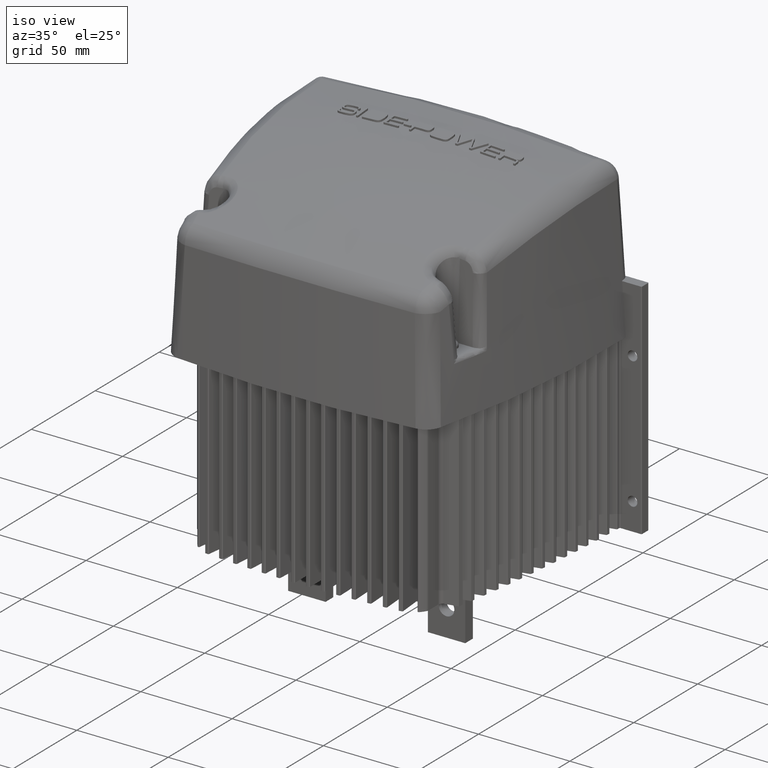
[diagram: clean part render]
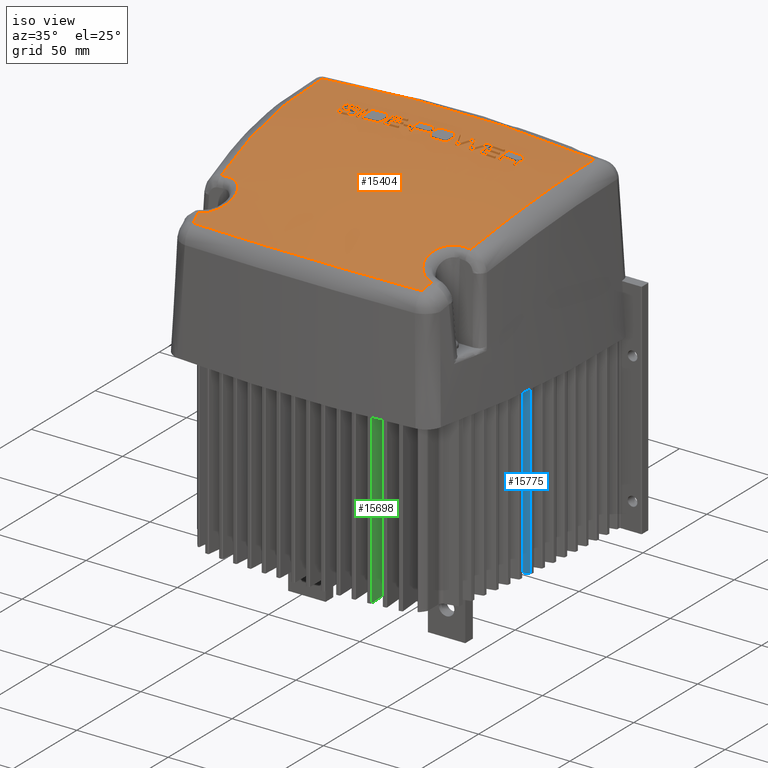
[diagram: same view with three faces highlighted in distinct colors, each labeled with its STEP entity id]
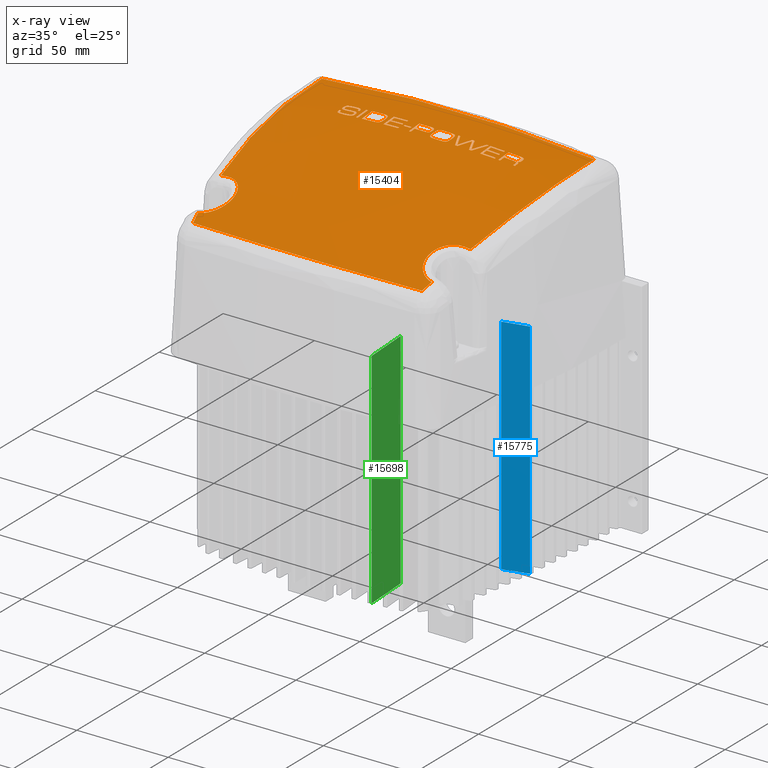
[diagram: x-ray of the same camera — body ghosted, the three highlighted faces saturated]
A machine part, iso view with three faces highlighted in distinct colors.
The next image is the same camera in x-ray (body ghosted, the three faces saturated) — at least one of them is partly hidden behind the body in this view.
Their STEP definitions:

[orange] entity #15404 — the highlighted face is a freeform B-spline surface patch.
#102=(
BOUNDED_SURFACE()
B_SPLINE_SURFACE(2,2,((#22699,#22700,#22701),(#22702,#22703,#22704),(#22705,
#22706,#22707)),.UNSPECIFIED.,.F.,.F.,.F.)
B_SPLINE_SURFACE_WITH_KNOTS((3,3),(3,3),(2.0760927268374E-17,0.260192802311476),
(0.,0.69928610281434),.UNSPECIFIED.)
GEOMETRIC_REPRESENTATION_ITEM()
RATIONAL_B_SPLINE_SURFACE(((1.,0.939495049890818,1.),(0.991549392226216,
0.93155574571878,0.991549392226216),(1.,0.939495049890818,1.)))
REPRESENTATION_ITEM('')
SURFACE()
);
#246=B_SPLINE_CURVE_WITH_KNOTS('',3,(#22712,#22713,#22714,#22715,#22716,
#22717,#22718,#22719,#22720,#22721),.UNSPECIFIED.,.F.,.F.,(4,1,1,1,1,1,
1,4),(-3.71635688247426,-3.18544875640651,-2.65454063033876,-2.12363250427101,
-1.59272437820326,-1.0618162521355,-0.530908126067754,-3.68450192266504E-15),
 .UNSPECIFIED.);
#247=B_SPLINE_CURVE_WITH_KNOTS('',3,(#22723,#22724,#22725,#22726),
 .UNSPECIFIED.,.F.,.F.,(4,4),(-12.6577488246323,-12.0316670656336),
 .UNSPECIFIED.);
#248=B_SPLINE_CURVE_WITH_KNOTS('',3,(#22728,#22729,#22730,#22731,#22732,
#22733),.UNSPECIFIED.,.F.,.F.,(4,1,1,4),(-14.4801982550575,-9.17151150945923,
-5.63238701239374,-2.09326251532824),.UNSPECIFIED.);
#249=B_SPLINE_CURVE_WITH_KNOTS('',3,(#22735,#22736,#22737,#22738),
 .UNSPECIFIED.,.F.,.F.,(4,4),(-1.47446554835586,-0.848383788849552),
 .UNSPECIFIED.);
#250=B_SPLINE_CURVE_WITH_KNOTS('',3,(#22740,#22741,#22742,#22743,#22744,
#22745,#22746,#22747,#22748,#22749),.UNSPECIFIED.,.F.,.F.,(4,1,1,1,1,1,
1,4),(-3.86141094729587,-3.33050282122812,-2.79959469516037,-2.26868656909262,
-1.73777844302487,-0.941416253923245,-0.675962190889369,-0.145054064821618),
 .UNSPECIFIED.);
#251=B_SPLINE_CURVE_WITH_KNOTS('',3,(#22753,#22754,#22755,#22756,#22757,
#22758),.UNSPECIFIED.,.F.,.F.,(4,1,1,4),(-12.5855950512648,-10.4443216220627,
-7.81885117755686,-3.97204038787795),.UNSPECIFIED.);
#252=B_SPLINE_CURVE_WITH_KNOTS('',3,(#22760,#22761,#22762,#22763,#22764,
#22765),.UNSPECIFIED.,.F.,.F.,(4,1,1,4),(-15.6231836666947,-11.6310556817607,
-7.14489042130641,-0.909690522307223),.UNSPECIFIED.);
#253=B_SPLINE_CURVE_WITH_KNOTS('',3,(#22766,#22767,#22768,#22769,#22770,
#22771),.UNSPECIFIED.,.F.,.F.,(4,1,1,4),(-9.53638969848222,-5.68957886875131,
-3.06410841183648,-0.922834976348918),.UNSPECIFIED.);
#254=B_SPLINE_CURVE_WITH_KNOTS('',3,(#22776,#22777,#22778,#22779,#22780,
#22781,#22782,#22783,#22784,#22785,#22786,#22787,#22788,#22789),
 .UNSPECIFIED.,.F.,.F.,(4,2,2,2,2,2,4),(-0.344978098801301,-0.327320958332903,
-0.303469753639183,-0.263126574979958,-0.22726416657731,-0.173340317007673,
0.),.UNSPECIFIED.);
#255=B_SPLINE_CURVE_WITH_KNOTS('',3,(#22791,#22792,#22793,#22794,#22795,
#22796,#22797,#22798,#22799,#22800,#22801,#22802),.UNSPECIFIED.,.F.,.F.,
(4,2,2,2,2,4),(-0.694931453139045,-0.324200572225438,-0.243739673043463,
-0.191450368758372,-0.128524618710701,0.),.UNSPECIFIED.);
#256=B_SPLINE_CURVE_WITH_KNOTS('',3,(#22806,#22807,#22808,#22809,#22810,
#22811,#22812,#22813,#22814,#22815,#22816,#22817),.UNSPECIFIED.,.F.,.F.,
(4,2,2,2,2,4),(-0.779138149808434,-0.479629327257852,-0.382088178239915,
-0.312408397674471,-0.230197026130095,0.),.UNSPECIFIED.);
#257=B_SPLINE_CURVE_WITH_KNOTS('',3,(#22821,#22822,#22823,#22824,#22825,
#22826,#22827,#22828,#22829,#22830,#22831,#22832,#22833,#22834),
 .UNSPECIFIED.,.F.,.F.,(4,2,2,2,2,2,4),(-0.558687482835055,-0.440802189418143,
-0.319489062537746,-0.235244088869065,-0.170486722276981,-0.10264368803719,
0.),.UNSPECIFIED.);
#258=B_SPLINE_CURVE_WITH_KNOTS('',3,(#22835,#22836,#22837,#22838,#22839,
#22840,#22841,#22842),.UNSPECIFIED.,.F.,.F.,(4,2,2,4),(0.,0.0813439758752466,
0.130770516128481,0.178319540669105),.UNSPECIFIED.);
#259=B_SPLINE_CURVE_WITH_KNOTS('',3,(#22871,#22872,#22873,#22874,#22875,
#22876,#22877,#22878,#22879,#22880,#22881,#22882),.UNSPECIFIED.,.F.,.F.,
(4,2,2,2,2,4),(-0.811923212449295,-0.502299103016662,-0.368424986121347,
-0.272608633493093,-0.158489527539052,0.),.UNSPECIFIED.);
#260=B_SPLINE_CURVE_WITH_KNOTS('',3,(#22884,#22885,#22886,#22887,#22888,
#22889,#22890,#22891,#22892,#22893,#22894,#22895),.UNSPECIFIED.,.F.,.F.,
(4,2,2,2,2,4),(-0.364032232448619,-0.28543840051134,-0.251941936521579,
-0.212906538194619,-0.140863921614982,0.),.UNSPECIFIED.);
#261=B_SPLINE_CURVE_WITH_KNOTS('',3,(#22937,#22938,#22939,#22940,#22941,
#22942,#22943,#22944,#22945,#22946,#22947,#22948),.UNSPECIFIED.,.F.,.F.,
(4,2,2,2,2,4),(-0.315408345370968,-0.263353836378153,-0.224506953592604,
-0.1861856156518,-0.127976016481331,0.),.UNSPECIFIED.);
#262=B_SPLINE_CURVE_WITH_KNOTS('',3,(#22950,#22951,#22952,#22953,#22954,
#22955,#22956,#22957,#22958,#22959,#22960,#22961,#22962,#22963),
 .UNSPECIFIED.,.F.,.F.,(4,2,2,2,2,2,4),(-0.287288574257299,-0.266941292407124,
-0.235331505127434,-0.171318377246629,-0.145577914850758,-0.106761297998346,
0.),.UNSPECIFIED.);
#263=B_SPLINE_CURVE_WITH_KNOTS('',3,(#22973,#22974,#22975,#22976,#22977,
#22978,#22979,#22980,#22981,#22982,#22983,#22984,#22985,#22986),
 .UNSPECIFIED.,.F.,.F.,(4,2,2,2,2,2,4),(-0.330473221875164,-0.289214045255447,
-0.275107930322417,-0.25961794510832,-0.236648828065321,-0.191040892000226,
0.),.UNSPECIFIED.);
#264=B_SPLINE_CURVE_WITH_KNOTS('',3,(#22988,#22989,#22990,#22991,#22992,
#22993,#22994,#22995,#22996,#22997,#22998,#22999),.UNSPECIFIED.,.F.,.F.,
(4,2,2,2,2,4),(-0.267421397702836,-0.160206528741531,-0.123672873457881,
-0.0955256897493755,-0.0611560297737708,0.),.UNSPECIFIED.);
#265=B_SPLINE_CURVE_WITH_KNOTS('',3,(#23001,#23002,#23003,#23004,#23005,
#23006,#23007,#23008,#23009,#23010,#23011,#23012,#23013,#23014,#23015,#23016,
#23017,#23018,#23019),.UNSPECIFIED.,.F.,.F.,(4,3,3,3,3,3,4),(-0.2222959543392,
-0.182393058275791,-0.164942184177715,-0.148103333548617,-0.144777844733823,
-0.100270848068678,0.),.UNSPECIFIED.);
#266=B_SPLINE_CURVE_WITH_KNOTS('',3,(#23025,#23026,#23027,#23028,#23029,
#23030,#23031,#23032,#23033,#23034,#23035,#23036,#23037,#23038,#23039,#23040,
#23041,#23042,#23043,#23044,#23045,#23046),.UNSPECIFIED.,.F.,.F.,(4,3,3,
3,3,3,3,4),(-0.472787745003058,-0.334339305979234,-0.217051075608132,-0.165674712984794,
-0.154548628173657,-0.103774398485093,-0.0556754433997796,0.),
 .UNSPECIFIED.);
#267=B_SPLINE_CURVE_WITH_KNOTS('',3,(#23048,#23049,#23050,#23051,#23052,
#23053,#23054,#23055,#23056,#23057,#23058,#23059,#23060,#23061),
 .UNSPECIFIED.,.F.,.F.,(4,2,2,2,2,2,4),(-2.17718622965455,-1.48436115306103,
-1.04291752146352,-0.42817568025337,-0.293229432046266,-0.158692939497327,
0.),.UNSPECIFIED.);
#268=B_SPLINE_CURVE_WITH_KNOTS('',3,(#23063,#23064,#23065,#23066,#23067,
#23068,#23069,#23070,#23071,#23072,#23073,#23074,#23075,#23076,#23077,#23078),
 .UNSPECIFIED.,.F.,.F.,(4,2,2,2,2,2,2,4),(-0.701172054515211,-0.460160764896223,
-0.332412374292581,-0.285907731276593,-0.218094305176536,-0.161186337126607,
-0.100606677175197,0.),.UNSPECIFIED.);
#269=B_SPLINE_CURVE_WITH_KNOTS('',3,(#23082,#23083,#23084,#23085,#23086,
#23087,#23088,#23089,#23090,#23091),.UNSPECIFIED.,.F.,.F.,(4,2,2,2,4),(-0.244084706399852,
-0.0875630028209217,-0.0350931104747263,-0.0173965626423715,0.),
 .UNSPECIFIED.);
#270=B_SPLINE_CURVE_WITH_KNOTS('',3,(#23093,#23094,#23095,#23096,#23097,
#23098),.UNSPECIFIED.,.F.,.F.,(4,2,4),(0.,0.0651064085109206,0.155742766211341),
 .UNSPECIFIED.);
#271=B_SPLINE_CURVE_WITH_KNOTS('',3,(#23102,#23103,#23104,#23105,#23106,
#23107,#23108,#23109,#23110,#23111,#23112,#23113,#23114,#23115),
 .UNSPECIFIED.,.F.,.F.,(4,2,2,2,2,2,4),(-0.416457180535825,-0.300180017508348,
-0.170532132453718,-0.111185283351964,-0.0764321315906464,-0.0490549387014502,
0.),.UNSPECIFIED.);
#272=B_SPLINE_CURVE_WITH_KNOTS('',3,(#23117,#23118,#23119,#23120,#23121,
#23122,#23123,#23124,#23125,#23126,#23127,#23128),.UNSPECIFIED.,.F.,.F.,
(4,2,2,2,2,4),(-0.316145781127857,-0.205829627990013,-0.150036894454582,
-0.11074147745207,-0.0613730225846389,0.),.UNSPECIFIED.);
#273=B_SPLINE_CURVE_WITH_KNOTS('',3,(#23132,#23133,#23134,#23135,#23136,
#23137,#23138,#23139,#23140,#23141,#23142,#23143,#23144,#23145),
 .UNSPECIFIED.,.F.,.F.,(4,2,2,2,2,2,4),(-0.562864273283567,-0.443354163976653,
-0.319614355240527,-0.22095942941306,-0.168336753147871,-0.114077863848964,
0.),.UNSPECIFIED.);
#274=B_SPLINE_CURVE_WITH_KNOTS('',3,(#23147,#23148,#23149,#23150,#23151,
#23152,#23153,#23154,#23155,#23156,#23157,#23158,#23159,#23160,#23161,#23162,
#23163,#23164,#23165,#23166,#23167,#23168,#23169,#23170,#23171,#23172,#23173,
#23174),.UNSPECIFIED.,.F.,.F.,(4,3,3,3,3,3,3,3,3,4),(-0.473957364301489,
-0.395296656804023,-0.327451434428886,-0.325941103964304,-0.288615265699082,
-0.259049634159377,-0.251885162532892,-0.167054295594657,-0.154580604976134,
0.),.UNSPECIFIED.);
#275=B_SPLINE_CURVE_WITH_KNOTS('',3,(#23178,#23179,#23180,#23181,#23182,
#23183,#23184,#23185,#23186,#23187,#23188,#23189,#23190,#23191),
 .UNSPECIFIED.,.F.,.F.,(4,2,2,2,2,2,4),(-0.369481061458511,-0.326732511154141,
-0.241827914419556,-0.202206046036146,-0.162168774897093,-0.0906037181348565,
0.),.UNSPECIFIED.);
#276=B_SPLINE_CURVE_WITH_KNOTS('',3,(#23194,#23195,#23196,#23197),
 .UNSPECIFIED.,.F.,.F.,(4,4),(-0.0679291284417774,-0.050175279033539),
 .UNSPECIFIED.);
#277=B_SPLINE_CURVE_WITH_KNOTS('',3,(#23238,#23239,#23240,#23241,#23242,
#23243,#23244,#23245,#23246,#23247,#23248,#23249,#23250,#23251,#23252,#23253,
#23254,#23255,#23256,#23257,#23258,#23259),.UNSPECIFIED.,.F.,.F.,(4,3,3,
3,3,3,3,4),(-0.373065594191418,-0.261679768162838,-0.209298499207817,-0.20490838183976,
-0.199089692115454,-0.145432179782462,-0.0806038092427284,0.),
 .UNSPECIFIED.);
#278=B_SPLINE_CURVE_WITH_KNOTS('',3,(#23261,#23262,#23263,#23264,#23265,
#23266,#23267,#23268,#23269,#23270,#23271,#23272),.UNSPECIFIED.,.F.,.F.,
(4,2,2,2,2,4),(-0.332658373181233,-0.193436314927719,-0.148320662157616,
-0.117324076845547,-0.0666709147596448,0.),.UNSPECIFIED.);
#279=B_SPLINE_CURVE_WITH_KNOTS('',3,(#23274,#23275,#23276,#23277,#23278,
#23279,#23280,#23281,#23282,#23283,#23284,#23285,#23286,#23287,#23288,#23289,
#23290,#23291,#23292),.UNSPECIFIED.,.F.,.F.,(4,3,3,3,3,3,4),(-0.131271830250873,
-0.114362221312242,-0.109349597016547,-0.105200101913961,-0.0713491517497336,
-0.0387342525836504,0.),.UNSPECIFIED.);
#280=B_SPLINE_CURVE_WITH_KNOTS('',3,(#23300,#23301,#23302,#23303,#23304,
#23305,#23306,#23307,#23308,#23309,#23310,#23311,#23312,#23313,#23314,#23315,
#23316,#23317,#23318,#23319,#23320,#23321),.UNSPECIFIED.,.F.,.F.,(4,3,3,
3,3,3,3,4),(-0.546294143016678,-0.379026008921912,-0.24705096594241,-0.155896010407084,
-0.140498248253089,-0.114160073739413,-0.0649119030209476,0.),
 .UNSPECIFIED.);
#1349=ELLIPSE('',#16300,293.721056457605,291.149574341264);
#1350=ELLIPSE('',#16341,554.547248197808,415.209025801846);
#1351=ELLIPSE('',#16343,769.911188475692,754.39240373075);
#3936=FACE_BOUND('',#4888,.T.);
#3937=FACE_BOUND('',#4889,.T.);
#3938=FACE_BOUND('',#4890,.T.);
#3939=FACE_BOUND('',#4891,.T.);
#3940=FACE_BOUND('',#4892,.T.);
#3941=FACE_BOUND('',#4893,.T.);
#3942=FACE_BOUND('',#4894,.T.);
#3943=FACE_BOUND('',#4895,.T.);
#3944=FACE_BOUND('',#4896,.T.);
#3945=FACE_BOUND('',#4897,.T.);
#4022=FACE_OUTER_BOUND('',#4887,.T.);
#4887=EDGE_LOOP('',(#10542,#10543,#10544,#10545,#10546,#10547,#10548,#10549,
#10550,#10551));
#4888=EDGE_LOOP('',(#10552,#10553,#10554,#10555,#10556,#10557,#10558,#10559));
#4889=EDGE_LOOP('',(#10560,#10561,#10562,#10563,#10564,#10565,#10566,#10567,
#10568,#10569,#10570,#10571));
#4890=EDGE_LOOP('',(#10572,#10573,#10574,#10575,#10576));
#4891=EDGE_LOOP('',(#10577,#10578,#10579,#10580,#10581,#10582,#10583,#10584,
#10585,#10586,#10587,#10588,#10589));
#4892=EDGE_LOOP('',(#10590,#10591,#10592,#10593));
#4893=EDGE_LOOP('',(#10594,#10595,#10596,#10597,#10598,#10599,#10600));
#4894=EDGE_LOOP('',(#10601,#10602,#10603,#10604,#10605,#10606,#10607,#10608,
#10609,#10610,#10611,#10612,#10613,#10614,#10615,#10616,#10617,#10618,#10619,
#10620,#10621));
#4895=EDGE_LOOP('',(#10622,#10623,#10624,#10625));
#4896=EDGE_LOOP('',(#10626,#10627,#10628,#10629,#10630,#10631,#10632,#10633,
#10634,#10635,#10636,#10637));
#4897=EDGE_LOOP('',(#10638,#10639,#10640,#10641,#10642,#10643,#10644,#10645,
#10646,#10647,#10648,#10649));
#5832=CIRCLE('',#16296,694.714041842171);
#5833=CIRCLE('',#16297,694.714041832732);
#5834=CIRCLE('',#16298,739.196452876146);
#5835=CIRCLE('',#16299,740.774127884077);
#5836=CIRCLE('',#16301,295.388582373738);
#5837=CIRCLE('',#16302,740.63493237846);
#5838=CIRCLE('',#16303,295.724800319352);
#5839=CIRCLE('',#16304,740.161712636432);
#5840=CIRCLE('',#16305,295.401953033906);
#5841=CIRCLE('',#16306,740.006057432008);
#5842=CIRCLE('',#16307,295.724800322356);
#5843=CIRCLE('',#16308,739.388698028254);
#5844=CIRCLE('',#16309,295.384218586973);
#5845=CIRCLE('',#16310,739.207351242509);
#5846=CIRCLE('',#16311,295.766659640209);
#5847=CIRCLE('',#16312,740.768640980464);
#5848=CIRCLE('',#16313,740.764388590889);
#5849=CIRCLE('',#16314,739.20960638468);
#5850=CIRCLE('',#16315,295.681625034877);
#5851=CIRCLE('',#16316,328.213519329322);
#5852=CIRCLE('',#16317,740.763814896081);
#5853=CIRCLE('',#16318,328.281989136599);
#5854=CIRCLE('',#16319,332.57412047072);
#5855=CIRCLE('',#16320,740.766365206928);
#5856=CIRCLE('',#16321,332.41539877162);
#5857=CIRCLE('',#16322,739.211161339712);
#5858=CIRCLE('',#16323,328.342507848269);
#5859=CIRCLE('',#16324,328.583377941708);
#5860=CIRCLE('',#16325,739.213357331373);
#5861=CIRCLE('',#16326,333.203997861476);
#5862=CIRCLE('',#16327,740.762033028781);
#5863=CIRCLE('',#16328,332.805293353317);
#5864=CIRCLE('',#16329,295.577303802775);
#5865=CIRCLE('',#16330,739.207053694424);
#5866=CIRCLE('',#16331,295.529933423071);
#5867=CIRCLE('',#16332,740.768951830065);
#5868=CIRCLE('',#16333,740.760853778883);
#5869=CIRCLE('',#16334,739.884643152646);
#5870=CIRCLE('',#16335,296.402190455373);
#5871=CIRCLE('',#16336,739.215214287074);
#5872=CIRCLE('',#16337,296.392885702414);
#5873=CIRCLE('',#16338,739.98221963922);
#5874=CIRCLE('',#16339,739.221954919696);
#5875=CIRCLE('',#16340,740.37476323393);
#5876=CIRCLE('',#16342,740.151645881018);
#5877=CIRCLE('',#16344,739.771547940633);
#5878=CIRCLE('',#16345,739.846337551868);
#5879=CIRCLE('',#16346,296.32519562514);
#5880=CIRCLE('',#16347,740.003527490377);
#5881=CIRCLE('',#16348,296.379272716922);
#5882=CIRCLE('',#16349,740.762677356564);
#5883=CIRCLE('',#16350,296.307268150004);
#5884=CIRCLE('',#16351,740.629737829388);
#5885=CIRCLE('',#16352,296.147443161477);
#5886=CIRCLE('',#16353,740.16040701692);
#5887=CIRCLE('',#16354,296.302598142327);
#5888=CIRCLE('',#16355,740.006008484051);
#5889=CIRCLE('',#16356,296.147443166488);
#5890=CIRCLE('',#16357,739.393725192898);
#5891=CIRCLE('',#16358,296.308767267838);
#5892=CIRCLE('',#16359,739.213535762072);
#5893=CIRCLE('',#16360,296.119868230039);
#5894=CIRCLE('',#16361,739.20410821255);
#5895=CIRCLE('',#16362,295.279208783194);
#5896=CIRCLE('',#16363,740.773346541233);
#5897=CIRCLE('',#16364,294.716775579749);
#5898=CIRCLE('',#16365,739.199176317675);
#5899=CIRCLE('',#16366,294.781552935716);
#5900=CIRCLE('',#16367,739.904566297244);
#5901=CIRCLE('',#16368,295.224277614404);
#6735=VERTEX_POINT('',#22708);
#6736=VERTEX_POINT('',#22709);
#6737=VERTEX_POINT('',#22711);
#6738=VERTEX_POINT('',#22722);
#6739=VERTEX_POINT('',#22727);
#6740=VERTEX_POINT('',#22734);
#6741=VERTEX_POINT('',#22739);
#6742=VERTEX_POINT('',#22750);
#6743=VERTEX_POINT('',#22752);
#6744=VERTEX_POINT('',#22759);
#6745=VERTEX_POINT('',#22772);
#6746=VERTEX_POINT('',#22773);
#6747=VERTEX_POINT('',#22775);
#6748=VERTEX_POINT('',#22790);
#6749=VERTEX_POINT('',#22803);
#6750=VERTEX_POINT('',#22805);
#6751=VERTEX_POINT('',#22818);
#6752=VERTEX_POINT('',#22820);
#6753=VERTEX_POINT('',#22843);
#6754=VERTEX_POINT('',#22844);
#6755=VERTEX_POINT('',#22846);
#6756=VERTEX_POINT('',#22848);
#6757=VERTEX_POINT('',#22850);
#6758=VERTEX_POINT('',#22852);
#6759=VERTEX_POINT('',#22854);
#6760=VERTEX_POINT('',#22856);
#6761=VERTEX_POINT('',#22858);
#6762=VERTEX_POINT('',#22860);
#6763=VERTEX_POINT('',#22862);
#6764=VERTEX_POINT('',#22864);
#6765=VERTEX_POINT('',#22867);
#6766=VERTEX_POINT('',#22868);
#6767=VERTEX_POINT('',#22870);
#6768=VERTEX_POINT('',#22883);
#6769=VERTEX_POINT('',#22896);
#6770=VERTEX_POINT('',#22899);
#6771=VERTEX_POINT('',#22900);
#6772=VERTEX_POINT('',#22902);
#6773=VERTEX_POINT('',#22904);
#6774=VERTEX_POINT('',#22906);
#6775=VERTEX_POINT('',#22908);
#6776=VERTEX_POINT('',#22910);
#6777=VERTEX_POINT('',#22912);
#6778=VERTEX_POINT('',#22914);
#6779=VERTEX_POINT('',#22916);
#6780=VERTEX_POINT('',#22918);
#6781=VERTEX_POINT('',#22920);
#6782=VERTEX_POINT('',#22922);
#6783=VERTEX_POINT('',#22925);
#6784=VERTEX_POINT('',#22926);
#6785=VERTEX_POINT('',#22928);
#6786=VERTEX_POINT('',#22930);
#6787=VERTEX_POINT('',#22933);
#6788=VERTEX_POINT('',#22934);
#6789=VERTEX_POINT('',#22936);
#6790=VERTEX_POINT('',#22949);
#6791=VERTEX_POINT('',#22964);
#6792=VERTEX_POINT('',#22966);
#6793=VERTEX_POINT('',#22968);
#6794=VERTEX_POINT('',#22971);
#6795=VERTEX_POINT('',#22972);
#6796=VERTEX_POINT('',#22987);
#6797=VERTEX_POINT('',#23000);
#6798=VERTEX_POINT('',#23020);
#6799=VERTEX_POINT('',#23022);
#6800=VERTEX_POINT('',#23024);
#6801=VERTEX_POINT('',#23047);
#6802=VERTEX_POINT('',#23062);
#6803=VERTEX_POINT('',#23079);
#6804=VERTEX_POINT('',#23081);
#6805=VERTEX_POINT('',#23092);
#6806=VERTEX_POINT('',#23099);
#6807=VERTEX_POINT('',#23101);
#6808=VERTEX_POINT('',#23116);
#6809=VERTEX_POINT('',#23129);
#6810=VERTEX_POINT('',#23131);
#6811=VERTEX_POINT('',#23146);
#6812=VERTEX_POINT('',#23175);
#6813=VERTEX_POINT('',#23177);
#6814=VERTEX_POINT('',#23192);
#6815=VERTEX_POINT('',#23198);
#6816=VERTEX_POINT('',#23199);
#6817=VERTEX_POINT('',#23201);
#6818=VERTEX_POINT('',#23203);
#6819=VERTEX_POINT('',#23206);
#6820=VERTEX_POINT('',#23207);
#6821=VERTEX_POINT('',#23209);
#6822=VERTEX_POINT('',#23211);
#6823=VERTEX_POINT('',#23213);
#6824=VERTEX_POINT('',#23215);
#6825=VERTEX_POINT('',#23217);
#6826=VERTEX_POINT('',#23219);
#6827=VERTEX_POINT('',#23221);
#6828=VERTEX_POINT('',#23223);
#6829=VERTEX_POINT('',#23225);
#6830=VERTEX_POINT('',#23227);
#6831=VERTEX_POINT('',#23230);
#6832=VERTEX_POINT('',#23231);
#6833=VERTEX_POINT('',#23233);
#6834=VERTEX_POINT('',#23235);
#6835=VERTEX_POINT('',#23237);
#6836=VERTEX_POINT('',#23260);
#6837=VERTEX_POINT('',#23273);
#6838=VERTEX_POINT('',#23293);
#6839=VERTEX_POINT('',#23295);
#6840=VERTEX_POINT('',#23297);
#6841=VERTEX_POINT('',#23299);
#6842=VERTEX_POINT('',#23322);
#8239=EDGE_CURVE('',#6735,#6736,#5832,.T.);
#8240=EDGE_CURVE('',#6737,#6735,#246,.T.);
#8241=EDGE_CURVE('',#6738,#6737,#247,.T.);
#8242=EDGE_CURVE('',#6739,#6738,#248,.T.);
#8243=EDGE_CURVE('',#6740,#6739,#249,.T.);
#8244=EDGE_CURVE('',#6741,#6740,#250,.T.);
#8245=EDGE_CURVE('',#6742,#6741,#5833,.T.);
#8246=EDGE_CURVE('',#6743,#6742,#251,.T.);
#8247=EDGE_CURVE('',#6744,#6743,#252,.T.);
#8248=EDGE_CURVE('',#6736,#6744,#253,.T.);
#8249=EDGE_CURVE('',#6745,#6746,#5834,.T.);
#8250=EDGE_CURVE('',#6746,#6747,#254,.T.);
#8251=EDGE_CURVE('',#6747,#6748,#255,.T.);
#8252=EDGE_CURVE('',#6748,#6749,#5835,.T.);
#8253=EDGE_CURVE('',#6749,#6750,#256,.T.);
#8254=EDGE_CURVE('',#6750,#6751,#1349,.T.);
#8255=EDGE_CURVE('',#6751,#6752,#257,.T.);
#8256=EDGE_CURVE('',#6752,#6745,#258,.T.);
#8257=EDGE_CURVE('',#6753,#6754,#5836,.T.);
#8258=EDGE_CURVE('',#6754,#6755,#5837,.T.);
#8259=EDGE_CURVE('',#6755,#6756,#5838,.T.);
#8260=EDGE_CURVE('',#6756,#6757,#5839,.T.);
#8261=EDGE_CURVE('',#6757,#6758,#5840,.T.);
#8262=EDGE_CURVE('',#6758,#6759,#5841,.T.);
#8263=EDGE_CURVE('',#6759,#6760,#5842,.T.);
#8264=EDGE_CURVE('',#6760,#6761,#5843,.T.);
#8265=EDGE_CURVE('',#6761,#6762,#5844,.T.);
#8266=EDGE_CURVE('',#6762,#6763,#5845,.T.);
#8267=EDGE_CURVE('',#6763,#6764,#5846,.T.);
#8268=EDGE_CURVE('',#6764,#6753,#5847,.T.);
#8269=EDGE_CURVE('',#6765,#6766,#5848,.T.);
#8270=EDGE_CURVE('',#6766,#6767,#259,.T.);
#8271=EDGE_CURVE('',#6767,#6768,#260,.T.);
#8272=EDGE_CURVE('',#6768,#6769,#5849,.T.);
#8273=EDGE_CURVE('',#6769,#6765,#5850,.T.);
#8274=EDGE_CURVE('',#6770,#6771,#5851,.T.);
#8275=EDGE_CURVE('',#6771,#6772,#5852,.T.);
#8276=EDGE_CURVE('',#6772,#6773,#5853,.T.);
#8277=EDGE_CURVE('',#6773,#6774,#5854,.T.);
#8278=EDGE_CURVE('',#6774,#6775,#5855,.T.);
#8279=EDGE_CURVE('',#6775,#6776,#5856,.T.);
#8280=EDGE_CURVE('',#6776,#6777,#5857,.T.);
#8281=EDGE_CURVE('',#6777,#6778,#5858,.T.);
#8282=EDGE_CURVE('',#6778,#6779,#5859,.T.);
#8283=EDGE_CURVE('',#6779,#6780,#5860,.T.);
#8284=EDGE_CURVE('',#6780,#6781,#5861,.T.);
#8285=EDGE_CURVE('',#6781,#6782,#5862,.T.);
#8286=EDGE_CURVE('',#6782,#6770,#5863,.T.);
#8287=EDGE_CURVE('',#6783,#6784,#5864,.T.);
#8288=EDGE_CURVE('',#6784,#6785,#5865,.T.);
#8289=EDGE_CURVE('',#6785,#6786,#5866,.T.);
#8290=EDGE_CURVE('',#6786,#6783,#5867,.T.);
#8291=EDGE_CURVE('',#6787,#6788,#5868,.T.);
#8292=EDGE_CURVE('',#6788,#6789,#261,.T.);
#8293=EDGE_CURVE('',#6789,#6790,#262,.T.);
#8294=EDGE_CURVE('',#6790,#6791,#5869,.T.);
#8295=EDGE_CURVE('',#6791,#6792,#5870,.T.);
#8296=EDGE_CURVE('',#6792,#6793,#5871,.T.);
#8297=EDGE_CURVE('',#6793,#6787,#5872,.T.);
#8298=EDGE_CURVE('',#6794,#6795,#263,.T.);
#8299=EDGE_CURVE('',#6795,#6796,#264,.T.);
#8300=EDGE_CURVE('',#6796,#6797,#265,.T.);
#8301=EDGE_CURVE('',#6797,#6798,#5873,.T.);
#8302=EDGE_CURVE('',#6798,#6799,#5874,.T.);
#8303=EDGE_CURVE('',#6799,#6800,#266,.T.);
#8304=EDGE_CURVE('',#6800,#6801,#267,.T.);
#8305=EDGE_CURVE('',#6801,#6802,#268,.T.);
#8306=EDGE_CURVE('',#6802,#6803,#5875,.T.);
#8307=EDGE_CURVE('',#6803,#6804,#269,.T.);
#8308=EDGE_CURVE('',#6804,#6805,#270,.T.);
#8309=EDGE_CURVE('',#6805,#6806,#1350,.T.);
#8310=EDGE_CURVE('',#6806,#6807,#271,.T.);
#8311=EDGE_CURVE('',#6807,#6808,#272,.T.);
#8312=EDGE_CURVE('',#6808,#6809,#5876,.T.);
#8313=EDGE_CURVE('',#6809,#6810,#273,.T.);
#8314=EDGE_CURVE('',#6810,#6811,#274,.T.);
#8315=EDGE_CURVE('',#6811,#6812,#1351,.T.);
#8316=EDGE_CURVE('',#6812,#6813,#275,.T.);
#8317=EDGE_CURVE('',#6813,#6814,#5877,.T.);
#8318=EDGE_CURVE('',#6814,#6794,#276,.T.);
#8319=EDGE_CURVE('',#6815,#6816,#5878,.T.);
#8320=EDGE_CURVE('',#6816,#6817,#5879,.T.);
#8321=EDGE_CURVE('',#6817,#6818,#5880,.T.);
#8322=EDGE_CURVE('',#6818,#6815,#5881,.T.);
#8323=EDGE_CURVE('',#6819,#6820,#5882,.T.);
#8324=EDGE_CURVE('',#6820,#6821,#5883,.T.);
#8325=EDGE_CURVE('',#6821,#6822,#5884,.T.);
#8326=EDGE_CURVE('',#6822,#6823,#5885,.T.);
#8327=EDGE_CURVE('',#6823,#6824,#5886,.T.);
#8328=EDGE_CURVE('',#6824,#6825,#5887,.T.);
#8329=EDGE_CURVE('',#6825,#6826,#5888,.T.);
#8330=EDGE_CURVE('',#6826,#6827,#5889,.T.);
#8331=EDGE_CURVE('',#6827,#6828,#5890,.T.);
#8332=EDGE_CURVE('',#6828,#6829,#5891,.T.);
#8333=EDGE_CURVE('',#6829,#6830,#5892,.T.);
#8334=EDGE_CURVE('',#6830,#6819,#5893,.T.);
#8335=EDGE_CURVE('',#6831,#6832,#5894,.T.);
#8336=EDGE_CURVE('',#6832,#6833,#5895,.T.);
#8337=EDGE_CURVE('',#6833,#6834,#5896,.T.);
#8338=EDGE_CURVE('',#6834,#6835,#277,.T.);
#8339=EDGE_CURVE('',#6835,#6836,#278,.T.);
#8340=EDGE_CURVE('',#6836,#6837,#279,.T.);
#8341=EDGE_CURVE('',#6837,#6838,#5897,.T.);
#8342=EDGE_CURVE('',#6838,#6839,#5898,.T.);
#8343=EDGE_CURVE('',#6839,#6840,#5899,.T.);
#8344=EDGE_CURVE('',#6840,#6841,#280,.T.);
#8345=EDGE_CURVE('',#6841,#6842,#5900,.T.);
#8346=EDGE_CURVE('',#6842,#6831,#5901,.T.);
#10542=ORIENTED_EDGE('',*,*,#8239,.F.);
#10543=ORIENTED_EDGE('',*,*,#8240,.F.);
#10544=ORIENTED_EDGE('',*,*,#8241,.F.);
#10545=ORIENTED_EDGE('',*,*,#8242,.F.);
#10546=ORIENTED_EDGE('',*,*,#8243,.F.);
#10547=ORIENTED_EDGE('',*,*,#8244,.F.);
#10548=ORIENTED_EDGE('',*,*,#8245,.F.);
#10549=ORIENTED_EDGE('',*,*,#8246,.F.);
#10550=ORIENTED_EDGE('',*,*,#8247,.F.);
#10551=ORIENTED_EDGE('',*,*,#8248,.F.);
#10552=ORIENTED_EDGE('',*,*,#8249,.T.);
#10553=ORIENTED_EDGE('',*,*,#8250,.T.);
#10554=ORIENTED_EDGE('',*,*,#8251,.T.);
#10555=ORIENTED_EDGE('',*,*,#8252,.T.);
#10556=ORIENTED_EDGE('',*,*,#8253,.T.);
#10557=ORIENTED_EDGE('',*,*,#8254,.T.);
#10558=ORIENTED_EDGE('',*,*,#8255,.T.);
#10559=ORIENTED_EDGE('',*,*,#8256,.T.);
#10560=ORIENTED_EDGE('',*,*,#8257,.T.);
#10561=ORIENTED_EDGE('',*,*,#8258,.T.);
#10562=ORIENTED_EDGE('',*,*,#8259,.T.);
#10563=ORIENTED_EDGE('',*,*,#8260,.T.);
#10564=ORIENTED_EDGE('',*,*,#8261,.T.);
#10565=ORIENTED_EDGE('',*,*,#8262,.T.);
#10566=ORIENTED_EDGE('',*,*,#8263,.T.);
#10567=ORIENTED_EDGE('',*,*,#8264,.T.);
#10568=ORIENTED_EDGE('',*,*,#8265,.T.);
#10569=ORIENTED_EDGE('',*,*,#8266,.T.);
#10570=ORIENTED_EDGE('',*,*,#8267,.T.);
#10571=ORIENTED_EDGE('',*,*,#8268,.T.);
#10572=ORIENTED_EDGE('',*,*,#8269,.T.);
#10573=ORIENTED_EDGE('',*,*,#8270,.T.);
#10574=ORIENTED_EDGE('',*,*,#8271,.T.);
#10575=ORIENTED_EDGE('',*,*,#8272,.T.);
#10576=ORIENTED_EDGE('',*,*,#8273,.T.);
#10577=ORIENTED_EDGE('',*,*,#8274,.T.);
#10578=ORIENTED_EDGE('',*,*,#8275,.T.);
#10579=ORIENTED_EDGE('',*,*,#8276,.T.);
#10580=ORIENTED_EDGE('',*,*,#8277,.T.);
#10581=ORIENTED_EDGE('',*,*,#8278,.T.);
#10582=ORIENTED_EDGE('',*,*,#8279,.T.);
#10583=ORIENTED_EDGE('',*,*,#8280,.T.);
#10584=ORIENTED_EDGE('',*,*,#8281,.T.);
#10585=ORIENTED_EDGE('',*,*,#8282,.T.);
#10586=ORIENTED_EDGE('',*,*,#8283,.T.);
#10587=ORIENTED_EDGE('',*,*,#8284,.T.);
#10588=ORIENTED_EDGE('',*,*,#8285,.T.);
#10589=ORIENTED_EDGE('',*,*,#8286,.T.);
#10590=ORIENTED_EDGE('',*,*,#8287,.T.);
#10591=ORIENTED_EDGE('',*,*,#8288,.T.);
#10592=ORIENTED_EDGE('',*,*,#8289,.T.);
#10593=ORIENTED_EDGE('',*,*,#8290,.T.);
#10594=ORIENTED_EDGE('',*,*,#8291,.T.);
#10595=ORIENTED_EDGE('',*,*,#8292,.T.);
#10596=ORIENTED_EDGE('',*,*,#8293,.T.);
#10597=ORIENTED_EDGE('',*,*,#8294,.T.);
#10598=ORIENTED_EDGE('',*,*,#8295,.T.);
#10599=ORIENTED_EDGE('',*,*,#8296,.T.);
#10600=ORIENTED_EDGE('',*,*,#8297,.T.);
#10601=ORIENTED_EDGE('',*,*,#8298,.T.);
#10602=ORIENTED_EDGE('',*,*,#8299,.T.);
#10603=ORIENTED_EDGE('',*,*,#8300,.T.);
#10604=ORIENTED_EDGE('',*,*,#8301,.T.);
#10605=ORIENTED_EDGE('',*,*,#8302,.T.);
#10606=ORIENTED_EDGE('',*,*,#8303,.T.);
#10607=ORIENTED_EDGE('',*,*,#8304,.T.);
#10608=ORIENTED_EDGE('',*,*,#8305,.T.);
#10609=ORIENTED_EDGE('',*,*,#8306,.T.);
#10610=ORIENTED_EDGE('',*,*,#8307,.T.);
#10611=ORIENTED_EDGE('',*,*,#8308,.T.);
#10612=ORIENTED_EDGE('',*,*,#8309,.T.);
#10613=ORIENTED_EDGE('',*,*,#8310,.T.);
#10614=ORIENTED_EDGE('',*,*,#8311,.T.);
#10615=ORIENTED_EDGE('',*,*,#8312,.T.);
#10616=ORIENTED_EDGE('',*,*,#8313,.T.);
#10617=ORIENTED_EDGE('',*,*,#8314,.T.);
#10618=ORIENTED_EDGE('',*,*,#8315,.T.);
#10619=ORIENTED_EDGE('',*,*,#8316,.T.);
#10620=ORIENTED_EDGE('',*,*,#8317,.T.);
#10621=ORIENTED_EDGE('',*,*,#8318,.T.);
#10622=ORIENTED_EDGE('',*,*,#8319,.T.);
#10623=ORIENTED_EDGE('',*,*,#8320,.T.);
#10624=ORIENTED_EDGE('',*,*,#8321,.T.);
#10625=ORIENTED_EDGE('',*,*,#8322,.T.);
#10626=ORIENTED_EDGE('',*,*,#8323,.T.);
#10627=ORIENTED_EDGE('',*,*,#8324,.T.);
#10628=ORIENTED_EDGE('',*,*,#8325,.T.);
#10629=ORIENTED_EDGE('',*,*,#8326,.T.);
#10630=ORIENTED_EDGE('',*,*,#8327,.T.);
#10631=ORIENTED_EDGE('',*,*,#8328,.T.);
#10632=ORIENTED_EDGE('',*,*,#8329,.T.);
#10633=ORIENTED_EDGE('',*,*,#8330,.T.);
#10634=ORIENTED_EDGE('',*,*,#8331,.T.);
#10635=ORIENTED_EDGE('',*,*,#8332,.T.);
#10636=ORIENTED_EDGE('',*,*,#8333,.T.);
#10637=ORIENTED_EDGE('',*,*,#8334,.T.);
#10638=ORIENTED_EDGE('',*,*,#8335,.T.);
#10639=ORIENTED_EDGE('',*,*,#8336,.T.);
#10640=ORIENTED_EDGE('',*,*,#8337,.T.);
#10641=ORIENTED_EDGE('',*,*,#8338,.T.);
#10642=ORIENTED_EDGE('',*,*,#8339,.T.);
#10643=ORIENTED_EDGE('',*,*,#8340,.T.);
#10644=ORIENTED_EDGE('',*,*,#8341,.T.);
#10645=ORIENTED_EDGE('',*,*,#8342,.T.);
#10646=ORIENTED_EDGE('',*,*,#8343,.T.);
#10647=ORIENTED_EDGE('',*,*,#8344,.T.);
#10648=ORIENTED_EDGE('',*,*,#8345,.T.);
#10649=ORIENTED_EDGE('',*,*,#8346,.T.);
#15404=ADVANCED_FACE('',(#4022,#3936,#3937,#3938,#3939,#3940,#3941,#3942,
#3943,#3944,#3945),#102,.F.);
#16296=AXIS2_PLACEMENT_3D('',#22710,#18004,#18005);
#16297=AXIS2_PLACEMENT_3D('',#22751,#18006,#18007);
#16298=AXIS2_PLACEMENT_3D('',#22774,#18008,#18009);
#16299=AXIS2_PLACEMENT_3D('',#22804,#18010,#18011);
#16300=AXIS2_PLACEMENT_3D('',#22819,#18012,#18013);
#16301=AXIS2_PLACEMENT_3D('',#22845,#18014,#18015);
#16302=AXIS2_PLACEMENT_3D('',#22847,#18016,#18017);
#16303=AXIS2_PLACEMENT_3D('',#22849,#18018,#18019);
#16304=AXIS2_PLACEMENT_3D('',#22851,#18020,#18021);
#16305=AXIS2_PLACEMENT_3D('',#22853,#18022,#18023);
#16306=AXIS2_PLACEMENT_3D('',#22855,#18024,#18025);
#16307=AXIS2_PLACEMENT_3D('',#22857,#18026,#18027);
#16308=AXIS2_PLACEMENT_3D('',#22859,#18028,#18029);
#16309=AXIS2_PLACEMENT_3D('',#22861,#18030,#18031);
#16310=AXIS2_PLACEMENT_3D('',#22863,#18032,#18033);
#16311=AXIS2_PLACEMENT_3D('',#22865,#18034,#18035);
#16312=AXIS2_PLACEMENT_3D('',#22866,#18036,#18037);
#16313=AXIS2_PLACEMENT_3D('',#22869,#18038,#18039);
#16314=AXIS2_PLACEMENT_3D('',#22897,#18040,#18041);
#16315=AXIS2_PLACEMENT_3D('',#22898,#18042,#18043);
#16316=AXIS2_PLACEMENT_3D('',#22901,#18044,#18045);
#16317=AXIS2_PLACEMENT_3D('',#22903,#18046,#18047);
#16318=AXIS2_PLACEMENT_3D('',#22905,#18048,#18049);
#16319=AXIS2_PLACEMENT_3D('',#22907,#18050,#18051);
#16320=AXIS2_PLACEMENT_3D('',#22909,#18052,#18053);
#16321=AXIS2_PLACEMENT_3D('',#22911,#18054,#18055);
#16322=AXIS2_PLACEMENT_3D('',#22913,#18056,#18057);
#16323=AXIS2_PLACEMENT_3D('',#22915,#18058,#18059);
#16324=AXIS2_PLACEMENT_3D('',#22917,#18060,#18061);
#16325=AXIS2_PLACEMENT_3D('',#22919,#18062,#18063);
#16326=AXIS2_PLACEMENT_3D('',#22921,#18064,#18065);
#16327=AXIS2_PLACEMENT_3D('',#22923,#18066,#18067);
#16328=AXIS2_PLACEMENT_3D('',#22924,#18068,#18069);
#16329=AXIS2_PLACEMENT_3D('',#22927,#18070,#18071);
#16330=AXIS2_PLACEMENT_3D('',#22929,#18072,#18073);
#16331=AXIS2_PLACEMENT_3D('',#22931,#18074,#18075);
#16332=AXIS2_PLACEMENT_3D('',#22932,#18076,#18077);
#16333=AXIS2_PLACEMENT_3D('',#22935,#18078,#18079);
#16334=AXIS2_PLACEMENT_3D('',#22965,#18080,#18081);
#16335=AXIS2_PLACEMENT_3D('',#22967,#18082,#18083);
#16336=AXIS2_PLACEMENT_3D('',#22969,#18084,#18085);
#16337=AXIS2_PLACEMENT_3D('',#22970,#18086,#18087);
#16338=AXIS2_PLACEMENT_3D('',#23021,#18088,#18089);
#16339=AXIS2_PLACEMENT_3D('',#23023,#18090,#18091);
#16340=AXIS2_PLACEMENT_3D('',#23080,#18092,#18093);
#16341=AXIS2_PLACEMENT_3D('',#23100,#18094,#18095);
#16342=AXIS2_PLACEMENT_3D('',#23130,#18096,#18097);
#16343=AXIS2_PLACEMENT_3D('',#23176,#18098,#18099);
#16344=AXIS2_PLACEMENT_3D('',#23193,#18100,#18101);
#16345=AXIS2_PLACEMENT_3D('',#23200,#18102,#18103);
#16346=AXIS2_PLACEMENT_3D('',#23202,#18104,#18105);
#16347=AXIS2_PLACEMENT_3D('',#23204,#18106,#18107);
#16348=AXIS2_PLACEMENT_3D('',#23205,#18108,#18109);
#16349=AXIS2_PLACEMENT_3D('',#23208,#18110,#18111);
#16350=AXIS2_PLACEMENT_3D('',#23210,#18112,#18113);
#16351=AXIS2_PLACEMENT_3D('',#23212,#18114,#18115);
#16352=AXIS2_PLACEMENT_3D('',#23214,#18116,#18117);
#16353=AXIS2_PLACEMENT_3D('',#23216,#18118,#18119);
#16354=AXIS2_PLACEMENT_3D('',#23218,#18120,#18121);
#16355=AXIS2_PLACEMENT_3D('',#23220,#18122,#18123);
#16356=AXIS2_PLACEMENT_3D('',#23222,#18124,#18125);
#16357=AXIS2_PLACEMENT_3D('',#23224,#18126,#18127);
#16358=AXIS2_PLACEMENT_3D('',#23226,#18128,#18129);
#16359=AXIS2_PLACEMENT_3D('',#23228,#18130,#18131);
#16360=AXIS2_PLACEMENT_3D('',#23229,#18132,#18133);
#16361=AXIS2_PLACEMENT_3D('',#23232,#18134,#18135);
#16362=AXIS2_PLACEMENT_3D('',#23234,#18136,#18137);
#16363=AXIS2_PLACEMENT_3D('',#23236,#18138,#18139);
#16364=AXIS2_PLACEMENT_3D('',#23294,#18140,#18141);
#16365=AXIS2_PLACEMENT_3D('',#23296,#18142,#18143);
#16366=AXIS2_PLACEMENT_3D('',#23298,#18144,#18145);
#16367=AXIS2_PLACEMENT_3D('',#23323,#18146,#18147);
#16368=AXIS2_PLACEMENT_3D('',#23324,#18148,#18149);
#18004=DIRECTION('center_axis',(-1.25414408050939E-5,-0.998439784529868,
0.0558390231886478));
#18005=DIRECTION('ref_axis',(-0.0981700196450873,0.0555705308596317,0.993616909750867));
#18006=DIRECTION('center_axis',(1.25414433338312E-5,-0.998439784528425,
0.0558390232144577));
#18007=DIRECTION('ref_axis',(0.0939832858072398,0.0555930439999261,0.994020399915262));
#18008=DIRECTION('center_axis',(-2.70186233151733E-13,-1.,-2.6174558480211E-11));
#18009=DIRECTION('ref_axis',(0.0089669583880164,-2.6175940370295E-11,0.999959796020454));
#18010=DIRECTION('center_axis',(0.,1.,0.));
#18011=DIRECTION('ref_axis',(0.0124794620555187,0.,0.999922128481416));
#18012=DIRECTION('center_axis',(1.,0.,0.));
#18013=DIRECTION('ref_axis',(0.,0.997046146673765,0.0768048266907569));
#18014=DIRECTION('center_axis',(1.,0.,0.));
#18015=DIRECTION('ref_axis',(0.,-0.0663913099942765,0.997793663017181));
#18016=DIRECTION('center_axis',(0.,-1.,0.));
#18017=DIRECTION('ref_axis',(0.0437263700285481,0.,0.999043544878864));
#18018=DIRECTION('center_axis',(1.,-1.06722677925626E-12,1.4944961811294E-11));
#18019=DIRECTION('ref_axis',(-1.49829170581446E-11,-0.0752477477651485,
0.997164869244937));
#18020=DIRECTION('center_axis',(0.,1.,0.));
#18021=DIRECTION('ref_axis',(0.0528038361571038,0.,0.998604904297537));
#18022=DIRECTION('center_axis',(1.,0.,0.));
#18023=DIRECTION('ref_axis',(0.,-0.0780467176832264,0.99694970277285));
#18024=DIRECTION('center_axis',(0.,-1.,0.));
#18025=DIRECTION('ref_axis',(0.0437632403697647,0.,0.999041930447535));
#18026=DIRECTION('center_axis',(1.,-1.20075321317651E-14,-9.99245936444743E-16));
#18027=DIRECTION('ref_axis',(-6.00679022342368E-17,-0.087897739661115,0.996129503308916));
#18028=DIRECTION('center_axis',(0.,1.,0.));
#18029=DIRECTION('ref_axis',(0.0533116439510959,0.,0.998577923158344));
#18030=DIRECTION('center_axis',(1.,0.,0.));
#18031=DIRECTION('ref_axis',(0.,-0.0907159811425037,0.995876805014231));
#18032=DIRECTION('center_axis',(0.,-1.,0.));
#18033=DIRECTION('ref_axis',(0.0424937016586087,0.,0.999096734715588));
#18034=DIRECTION('center_axis',(-1.,-4.06966565901537E-13,5.20653551343407E-12));
#18035=DIRECTION('ref_axis',(5.22186461413646E-12,-0.0635503307630772,0.997978634771258));
#18036=DIRECTION('center_axis',(0.,1.,0.));
#18037=DIRECTION('ref_axis',(0.0531020573245064,0.,0.998589090421032));
#18038=DIRECTION('center_axis',(0.,1.,0.));
#18039=DIRECTION('ref_axis',(-0.0360166658979058,0.,0.999351189411209));
#18040=DIRECTION('center_axis',(0.,-1.,0.));
#18041=DIRECTION('ref_axis',(-0.0451277346783481,0.,0.998981224829977));
#18042=DIRECTION('center_axis',(-1.,4.50006692751957E-13,-5.87488202954118E-12));
#18043=DIRECTION('ref_axis',(-5.89159919916416E-12,-0.0636113498006684,
0.997974747263946));
#18044=DIRECTION('center_axis',(-0.913945383406003,0.405837204000391,-1.89151064480201E-11));
#18045=DIRECTION('ref_axis',(-0.0187887345183736,-0.0423122300886947,0.998927754464816));
#18046=DIRECTION('center_axis',(0.,1.,0.));
#18047=DIRECTION('ref_axis',(0.0308203769329689,0.,0.99952493934154));
#18048=DIRECTION('center_axis',(0.914546893708948,0.404479887271684,-7.59901376961328E-12));
#18049=DIRECTION('ref_axis',(0.0380900800723507,-0.0861233537190059,0.995556082671525));
#18050=DIRECTION('center_axis',(-0.902296888974259,0.431115209830706,-1.88961686938717E-11));
#18051=DIRECTION('ref_axis',(-0.0173725449933784,-0.0363596387341131,0.999187755805473));
#18052=DIRECTION('center_axis',(0.,1.,0.));
#18053=DIRECTION('ref_axis',(0.0411167192113061,0.,0.999154350138805));
#18054=DIRECTION('center_axis',(0.902544011346384,-0.430597616787156,-9.06555510475076E-12));
#18055=DIRECTION('ref_axis',(-0.0285821780369629,-0.0599090023303626,0.997794553271586));
#18056=DIRECTION('center_axis',(0.,-1.,0.));
#18057=DIRECTION('ref_axis',(0.0342187891350724,0.,0.999414365751328));
#18058=DIRECTION('center_axis',(-0.914383993531762,-0.404848011447392,-1.18057362819903E-12));
#18059=DIRECTION('ref_axis',(0.0295515371863749,-0.0667446839915634,0.997332368776221));
#18060=DIRECTION('center_axis',(0.912866303716751,-0.408258633146339,-9.36863253120867E-12));
#18061=DIRECTION('ref_axis',(-0.0294907711513294,-0.0659413643174063,0.997387603135741));
#18062=DIRECTION('center_axis',(0.,-1.,0.));
#18063=DIRECTION('ref_axis',(0.0239264647882408,0.,0.999713721163582));
#18064=DIRECTION('center_axis',(-0.902544011345953,-0.430597616788059,5.31521270470508E-12));
#18065=DIRECTION('ref_axis',(0.0281144163161488,-0.0589285613390081,0.997866225630328));
#18066=DIRECTION('center_axis',(0.,1.,0.));
#18067=DIRECTION('ref_axis',(0.020199842833159,0.,0.999795962359078));
#18068=DIRECTION('center_axis',(0.903541674040058,0.428500225522565,-1.04884147073807E-11));
#18069=DIRECTION('ref_axis',(0.0383983243327551,-0.0809672531565066,0.995976843407881));
#18070=DIRECTION('center_axis',(1.,-4.3212278415048E-13,5.5283593321513E-12));
#18071=DIRECTION('ref_axis',(-5.54478035987913E-12,-0.0906567210111238,
0.995882201334832));
#18072=DIRECTION('center_axis',(0.,-1.,0.));
#18073=DIRECTION('ref_axis',(-0.0494789232612705,0.,0.998775167969702));
#18074=DIRECTION('center_axis',(-1.,4.55073994993283E-13,-5.85279266375954E-12));
#18075=DIRECTION('ref_axis',(-5.86988903890669E-12,-0.063601236027479,0.997975391868846));
#18076=DIRECTION('center_axis',(0.,1.,0.));
#18077=DIRECTION('ref_axis',(-0.0480616382463321,0.,0.998844371726186));
#18078=DIRECTION('center_axis',(0.,1.,0.));
#18079=DIRECTION('ref_axis',(-0.00128866474578366,0.,0.999999169671242));
#18080=DIRECTION('center_axis',(0.,-1.,0.));
#18081=DIRECTION('ref_axis',(-0.00893409580019014,0.,0.999960090169719));
#18082=DIRECTION('center_axis',(1.,-5.28826794452908E-13,6.38891236863666E-12));
#18083=DIRECTION('ref_axis',(-6.41053918634571E-12,-0.0904044235532216,
0.995905136146014));
#18084=DIRECTION('center_axis',(0.,-1.,0.));
#18085=DIRECTION('ref_axis',(-0.010258639004028,0.,0.999947378778396));
#18086=DIRECTION('center_axis',(-1.,1.28007976992281E-13,-1.63048590899498E-12));
#18087=DIRECTION('ref_axis',(-1.63531835809784E-12,-0.0634160600863006,
0.997987175931199));
#18088=DIRECTION('center_axis',(0.,-1.,0.));
#18089=DIRECTION('ref_axis',(-0.0582231889987931,0.,0.998303591230048));
#18090=DIRECTION('center_axis',(-0.0294856991528615,-0.999565202248191,
-4.94683974188656E-10));
#18091=DIRECTION('ref_axis',(-0.0587607258254928,0.00173335424839785,0.998270590863775));
#18092=DIRECTION('center_axis',(0.,-1.,0.));
#18093=DIRECTION('ref_axis',(-0.0535751106798246,0.,0.998563822454852));
#18094=DIRECTION('center_axis',(0.,-1.,0.));
#18095=DIRECTION('ref_axis',(0.998300724209121,0.,0.0582723265671142));
#18096=DIRECTION('center_axis',(0.,1.,0.));
#18097=DIRECTION('ref_axis',(-0.0570659626138684,0.,0.998370410173976));
#18098=DIRECTION('center_axis',(0.,-1.,0.));
#18099=DIRECTION('ref_axis',(0.0628316888368135,0.,-0.998024137422494));
#18100=DIRECTION('center_axis',(0.,1.,0.));
#18101=DIRECTION('ref_axis',(-0.0629974285077865,0.,0.998013689285576));
#18102=DIRECTION('center_axis',(0.,-1.,0.));
#18103=DIRECTION('ref_axis',(-0.0169888315184176,0.,0.9998556793876));
#18104=DIRECTION('center_axis',(-1.,0.,0.));
#18105=DIRECTION('ref_axis',(0.,-0.077846201948209,0.996965379961731));
#18106=DIRECTION('center_axis',(0.,1.,0.));
#18107=DIRECTION('ref_axis',(-0.0119128778530029,0.,0.999929039152909));
#18108=DIRECTION('center_axis',(1.,0.,0.));
#18109=DIRECTION('ref_axis',(0.,-0.0804971287997145,0.996754840597728));
#18110=DIRECTION('center_axis',(0.,1.,0.));
#18111=DIRECTION('ref_axis',(-0.0183412775881168,0.,0.999831784620011));
#18112=DIRECTION('center_axis',(1.,0.,0.));
#18113=DIRECTION('ref_axis',(0.,-0.0661854670384635,0.997807338093332));
#18114=DIRECTION('center_axis',(0.,-1.,0.));
#18115=DIRECTION('ref_axis',(-0.0277298528483516,0.,0.999615453692573));
#18116=DIRECTION('center_axis',(1.,6.43021849135863E-13,-8.97979721959092E-12));
#18117=DIRECTION('ref_axis',(9.00272496630032E-12,-0.0751403589534858,0.997172967170862));
#18118=DIRECTION('center_axis',(0.,1.,0.));
#18119=DIRECTION('ref_axis',(-0.0186976690688233,0.,0.999825183305258));
#18120=DIRECTION('center_axis',(1.,0.,0.));
#18121=DIRECTION('ref_axis',(0.,-0.0778094860290009,0.996968246176328));
#18122=DIRECTION('center_axis',(0.,-1.,0.));
#18123=DIRECTION('ref_axis',(-0.0277531948315359,0.,0.999614805901074));
#18124=DIRECTION('center_axis',(1.,-4.92092877184119E-13,6.03098190546517E-12));
#18125=DIRECTION('ref_axis',(-6.05091205608343E-12,-0.0877722975832127,
0.996140564266391));
#18126=DIRECTION('center_axis',(0.,1.,0.));
#18127=DIRECTION('ref_axis',(-0.0182640625837723,0.,0.999833198097531));
#18128=DIRECTION('center_axis',(1.,0.,0.));
#18129=DIRECTION('ref_axis',(0.,-0.0904329270451902,0.995902548297794));
#18130=DIRECTION('center_axis',(0.,-1.,0.));
#18131=DIRECTION('ref_axis',(-0.0290993636906744,0.,0.999576523850374));
#18132=DIRECTION('center_axis',(-1.,2.67489451939924E-13,-3.42091139783887E-12));
#18133=DIRECTION('ref_axis',(-3.43100008914535E-12,-0.0634745286130979,
0.997983458889648));
#18134=DIRECTION('center_axis',(0.,-1.,0.));
#18135=DIRECTION('ref_axis',(0.0559319598532742,0.,0.998434582667774));
#18136=DIRECTION('center_axis',(-1.,-5.03180214181301E-13,6.49767573993606E-12));
#18137=DIRECTION('ref_axis',(6.51655437263231E-12,-0.0636552404968908,0.997971948682569));
#18138=DIRECTION('center_axis',(0.,1.,0.));
#18139=DIRECTION('ref_axis',(0.0646096155523355,0.,0.997910616026395));
#18140=DIRECTION('center_axis',(1.,-1.90527527187976E-12,2.20357261417391E-11));
#18141=DIRECTION('ref_axis',(-2.21176687033403E-11,-0.0909214248663578,
0.995858069455819));
#18142=DIRECTION('center_axis',(0.,-1.,0.));
#18143=DIRECTION('ref_axis',(0.066916864109176,0.,0.997758554610179));
#18144=DIRECTION('center_axis',(-1.,1.72810329852852E-12,-1.96994075253524E-11));
#18145=DIRECTION('ref_axis',(-1.9775017499197E-11,-0.084877759433094,0.996391371878349));
#18146=DIRECTION('center_axis',(0.,-1.,0.));
#18147=DIRECTION('ref_axis',(0.0571947353262768,0.,0.9983630413086));
#18148=DIRECTION('center_axis',(1.,1.86018692910726E-13,-1.98072369845498E-12));
#18149=DIRECTION('ref_axis',(1.98945232460327E-12,-0.0907651273956009,0.995872326982159));
#22699=CARTESIAN_POINT('Ctrl Pts',(1.27942002647856,140.348625173506,219.530892314547));
#22700=CARTESIAN_POINT('Ctrl Pts',(1.27942002647885,34.6041840253134,223.339653174966));
#22701=CARTESIAN_POINT('Ctrl Pts',(1.27942002647906,-48.7738282726332,158.189821569053));
#22702=CARTESIAN_POINT('Ctrl Pts',(97.2794200264784,139.800757147656,232.079133130117));
#22703=CARTESIAN_POINT('Ctrl Pts',(97.2794200264787,29.4809257758124,235.688128139197));
#22704=CARTESIAN_POINT('Ctrl Pts',(97.2794200264789,-57.2700577562078,167.440367039549));
#22705=CARTESIAN_POINT('Ctrl Pts',(193.279420026478,140.348625173507,219.530892314547));
#22706=CARTESIAN_POINT('Ctrl Pts',(193.279420026479,34.6041840253144,223.339653174966));
#22707=CARTESIAN_POINT('Ctrl Pts',(193.279420026479,-48.7738282726324,158.189821569053));
#22708=CARTESIAN_POINT('',(31.8755513907631,42.8583719048539,209.863376072196));
#22709=CARTESIAN_POINT('',(28.9669685951757,42.8427319848461,209.583065867154));
#22710=CARTESIAN_POINT('Origin',(97.1670597396266,4.23710362737185,-480.696553627505));
#22711=CARTESIAN_POINT('',(33.326663080966,18.710238769493,201.328497068133));
#22712=CARTESIAN_POINT('Ctrl Pts',(33.3266630705378,18.7102388277612,201.328497088389));
#22713=CARTESIAN_POINT('Ctrl Pts',(35.086422174476,18.9184146195296,201.578082391186));
#22714=CARTESIAN_POINT('Ctrl Pts',(38.4524913993676,20.1235274419399,202.371798376342));
#22715=CARTESIAN_POINT('Ctrl Pts',(42.1983373508015,23.7923173569486,204.133373967674));
#22716=CARTESIAN_POINT('Ctrl Pts',(44.1071489781354,28.6099426640252,206.098150576789));
#22717=CARTESIAN_POINT('Ctrl Pts',(43.9251853749675,33.8186217425942,207.936290472587));
#22718=CARTESIAN_POINT('Ctrl Pts',(41.552362270307,38.6417652413055,209.366916787339));
#22719=CARTESIAN_POINT('Ctrl Pts',(37.2590379202092,42.0616118867483,210.101932079635));
#22720=CARTESIAN_POINT('Ctrl Pts',(33.6493791363011,42.867700030755,210.030567527361));
#22721=CARTESIAN_POINT('Ctrl Pts',(31.8755513907631,42.8583719048539,209.863376072196));
#22722=CARTESIAN_POINT('',(34.5709982587986,12.8138146711103,198.95719425359));
#22723=CARTESIAN_POINT('Ctrl Pts',(34.5709982587986,12.8138146711103,198.95719425359));
#22724=CARTESIAN_POINT('Ctrl Pts',(34.1466091408635,14.7690579991802,199.767654839782));
#22725=CARTESIAN_POINT('Ctrl Pts',(33.7318253648981,16.734067342439,200.557928565514));
#22726=CARTESIAN_POINT('Ctrl Pts',(33.3266631024725,18.710238651461,201.328497029675));
#22727=CARTESIAN_POINT('',(159.98784179416,12.8138146711106,198.95719425359));
#22728=CARTESIAN_POINT('Ctrl Pts',(159.98784179416,12.8138146711106,198.95719425359));
#22729=CARTESIAN_POINT('Ctrl Pts',(142.153890840347,10.8367723542924,199.746667210736));
#22730=CARTESIAN_POINT('Ctrl Pts',(112.230422134446,8.94637555843839,200.489414859464));
#22731=CARTESIAN_POINT('Ctrl Pts',(70.3595122807105,9.60794414925087,200.230172941899));
#22732=CARTESIAN_POINT('Ctrl Pts',(46.4602989672066,11.4957864518573,199.483509561565));
#22733=CARTESIAN_POINT('Ctrl Pts',(34.5709982587986,12.8138146711102,198.95719425359));
#22734=CARTESIAN_POINT('',(161.232176971991,18.7102387694897,201.328497068131));
#22735=CARTESIAN_POINT('Ctrl Pts',(161.232176950483,18.7102386514506,201.32849702967));
#22736=CARTESIAN_POINT('Ctrl Pts',(160.827014689722,16.7340673505557,200.557928568675));
#22737=CARTESIAN_POINT('Ctrl Pts',(160.4122309127,14.7690580019714,199.767654840939));
#22738=CARTESIAN_POINT('Ctrl Pts',(159.98784179416,12.8138146711107,198.95719425359));
#22739=CARTESIAN_POINT('',(162.683288662195,42.8583719048542,209.863376072196));
#22740=CARTESIAN_POINT('Ctrl Pts',(162.683288662195,42.8583719048542,209.863376072196));
#22741=CARTESIAN_POINT('Ctrl Pts',(160.909460916657,42.8677000307553,210.030567527361));
#22742=CARTESIAN_POINT('Ctrl Pts',(157.30005280745,42.0613183883252,210.10177419184));
#22743=CARTESIAN_POINT('Ctrl Pts',(153.006419485156,38.6396855893345,209.366266562971));
#22744=CARTESIAN_POINT('Ctrl Pts',(150.635501745414,33.8187481526869,207.935960428463));
#22745=CARTESIAN_POINT('Ctrl Pts',(150.420567772487,27.7336407005226,205.789398533647));
#22746=CARTESIAN_POINT('Ctrl Pts',(152.866168808616,23.0279247914686,203.794745250446));
#22747=CARTESIAN_POINT('Ctrl Pts',(156.95016852815,19.8246706355757,202.173599623371));
#22748=CARTESIAN_POINT('Ctrl Pts',(159.472417878482,18.9184146195299,201.578082391185));
#22749=CARTESIAN_POINT('Ctrl Pts',(161.23217698242,18.7102388277615,201.328497088389));
#22750=CARTESIAN_POINT('',(165.591871448695,42.842731728182,209.583065788247));
#22751=CARTESIAN_POINT('Origin',(97.3917803143266,4.23710360988065,-480.696553617124));
#22752=CARTESIAN_POINT('',(171.768870900304,130.683282086607,222.204868586853));
#22753=CARTESIAN_POINT('Ctrl Pts',(171.768695835938,130.682618322963,222.204619265187));
#22754=CARTESIAN_POINT('Ctrl Pts',(171.878966948401,123.282641691004,222.212542289533));
#22755=CARTESIAN_POINT('Ctrl Pts',(171.77014606017,106.776441339133,221.639640480266));
#22756=CARTESIAN_POINT('Ctrl Pts',(170.166533507706,77.2597290408298,218.253008115221));
#22757=CARTESIAN_POINT('Ctrl Pts',(167.567089563535,55.4690558622648,213.316628075345));
#22758=CARTESIAN_POINT('Ctrl Pts',(165.591863594981,42.8427354470797,209.583057366414));
#22759=CARTESIAN_POINT('',(22.7899691526532,130.683282086606,222.204868586853));
#22760=CARTESIAN_POINT('Ctrl Pts',(22.7901106365006,130.683283028832,222.204845431614));
#22761=CARTESIAN_POINT('Ctrl Pts',(36.2156042555166,130.622829753941,223.558921716189));
#22762=CARTESIAN_POINT('Ctrl Pts',(64.8289425691582,130.529141637987,225.658255850497));
#22763=CARTESIAN_POINT('Ctrl Pts',(114.562880500007,130.495098059563,226.421430681053));
#22764=CARTESIAN_POINT('Ctrl Pts',(150.801433355642,130.588867519863,224.319615971342));
#22765=CARTESIAN_POINT('Ctrl Pts',(171.768817170508,130.683283133714,222.204841252146));
#22766=CARTESIAN_POINT('Ctrl Pts',(28.9669763785469,42.8427354099288,209.583057450141));
#22767=CARTESIAN_POINT('Ctrl Pts',(26.9917471609549,55.4690613827096,213.316632450693));
#22768=CARTESIAN_POINT('Ctrl Pts',(24.3921829230758,77.2599530634416,218.253172752287));
#22769=CARTESIAN_POINT('Ctrl Pts',(22.7886374657869,106.776718320502,221.639725709093));
#22770=CARTESIAN_POINT('Ctrl Pts',(22.6798634767262,123.282690667168,222.212556908208));
#22771=CARTESIAN_POINT('Ctrl Pts',(22.7901417092908,130.682631211329,222.204623081479));
#22772=CARTESIAN_POINT('',(105.910926090612,103.024686779752,224.681529656394));
#22773=CARTESIAN_POINT('',(103.907766503101,103.024686779752,224.702207221739));
#22774=CARTESIAN_POINT('Origin',(97.2794226695913,103.024686799101,-514.464527015335));
#22775=CARTESIAN_POINT('',(100.141573713963,107.049963301029,225.06524559889));
#22776=CARTESIAN_POINT('Ctrl Pts',(103.907766503101,103.024686779752,224.702207221739));
#22777=CARTESIAN_POINT('Ctrl Pts',(103.23657203136,103.024686779752,224.708226036658));
#22778=CARTESIAN_POINT('Ctrl Pts',(102.64741608438,103.070263375986,224.716688255975));
#22779=CARTESIAN_POINT('Ctrl Pts',(101.73638715148,103.205391084241,224.735082593027));
#22780=CARTESIAN_POINT('Ctrl Pts',(101.451649631195,103.323386554829,224.747207718338));
#22781=CARTESIAN_POINT('Ctrl Pts',(101.157527621761,103.450885327291,224.760282407533));
#22782=CARTESIAN_POINT('Ctrl Pts',(100.995628789726,103.564310174056,224.771268965968));
#22783=CARTESIAN_POINT('Ctrl Pts',(100.730139081716,103.836204048745,224.796674348687));
#22784=CARTESIAN_POINT('Ctrl Pts',(100.590341904195,104.018016635463,224.813398141388));
#22785=CARTESIAN_POINT('Ctrl Pts',(100.295662568156,104.681541856256,224.872234243512));
#22786=CARTESIAN_POINT('Ctrl Pts',(100.245027261486,105.098102581588,224.907477573261));
#22787=CARTESIAN_POINT('Ctrl Pts',(100.161570460095,105.849869762544,224.970481823517));
#22788=CARTESIAN_POINT('Ctrl Pts',(100.141573713963,106.473881919436,225.020700083999));
#22789=CARTESIAN_POINT('Ctrl Pts',(100.141573713963,107.049963301029,225.06524559889));
#22790=CARTESIAN_POINT('',(102.985175652071,111.18898389983,225.339724260415));
#22791=CARTESIAN_POINT('Ctrl Pts',(100.141573713963,107.049963301029,225.06524559889));
#22792=CARTESIAN_POINT('Ctrl Pts',(100.141573713963,108.482868250386,225.176045028967));
#22793=CARTESIAN_POINT('Ctrl Pts',(100.148039952341,108.654362208888,225.186345987513));
#22794=CARTESIAN_POINT('Ctrl Pts',(100.38494407682,109.766512126792,225.261839402348));
#22795=CARTESIAN_POINT('Ctrl Pts',(100.445176939746,110.033209201448,225.279696009023));
#22796=CARTESIAN_POINT('Ctrl Pts',(100.736066867462,110.472949838498,225.307528162536));
#22797=CARTESIAN_POINT('Ctrl Pts',(100.880435722573,110.617007473713,225.316251438986));
#22798=CARTESIAN_POINT('Ctrl Pts',(101.259362884732,110.874259355043,225.330992200429));
#22799=CARTESIAN_POINT('Ctrl Pts',(101.492334582762,110.965570435001,225.335534532851));
#22800=CARTESIAN_POINT('Ctrl Pts',(102.104786061479,111.148442682053,225.343554582343));
#22801=CARTESIAN_POINT('Ctrl Pts',(102.556772964936,111.18898389983,225.343024098274));
#22802=CARTESIAN_POINT('Ctrl Pts',(102.985175652071,111.18898389983,225.339724260415));
#22803=CARTESIAN_POINT('',(106.52388028616,111.18898389983,225.30401346973));
#22804=CARTESIAN_POINT('Origin',(97.2794176655208,111.18898389983,-515.412429208081));
#22805=CARTESIAN_POINT('',(110.422774499076,107.422791110692,224.98265998552));
#22806=CARTESIAN_POINT('Ctrl Pts',(106.52388028616,111.18898389983,225.30401346973));
#22807=CARTESIAN_POINT('Ctrl Pts',(107.503990808116,111.18898389983,225.29178126531));
#22808=CARTESIAN_POINT('Ctrl Pts',(108.36477627999,111.112093362674,225.274200398038));
#22809=CARTESIAN_POINT('Ctrl Pts',(109.186499507478,110.851656370904,225.244492430564));
#22810=CARTESIAN_POINT('Ctrl Pts',(109.395604417834,110.764568912194,225.23548852466));
#22811=CARTESIAN_POINT('Ctrl Pts',(109.694853384622,110.558145662056,225.217078134601));
#22812=CARTESIAN_POINT('Ctrl Pts',(109.808041171734,110.450978888662,225.208173716533));
#22813=CARTESIAN_POINT('Ctrl Pts',(110.041938978312,110.08612285015,225.179972725461));
#22814=CARTESIAN_POINT('Ctrl Pts',(110.130561149624,109.851038700239,225.162601088753));
#22815=CARTESIAN_POINT('Ctrl Pts',(110.371357260622,108.995176205919,225.099696829475));
#22816=CARTESIAN_POINT('Ctrl Pts',(110.422774499076,108.187903149456,225.040873383329));
#22817=CARTESIAN_POINT('Ctrl Pts',(110.422774499076,107.422791110692,224.98265998552));
#22818=CARTESIAN_POINT('',(110.422774499076,106.88566630016,224.941301831345));
#22819=CARTESIAN_POINT('Origin',(110.422774499076,129.506155713066,-65.3282096100385));
#22820=CARTESIAN_POINT('',(107.888809216452,103.081558818514,224.660959704621));
#22821=CARTESIAN_POINT('Ctrl Pts',(110.422774499076,106.88566630016,224.941301831344));
#22822=CARTESIAN_POINT('Ctrl Pts',(110.422774499076,106.520237598371,224.912829955625));
#22823=CARTESIAN_POINT('Ctrl Pts',(110.409263165391,106.153929843322,224.883844419853));
#22824=CARTESIAN_POINT('Ctrl Pts',(110.359363878992,105.414281196944,224.82433733041));
#22825=CARTESIAN_POINT('Ctrl Pts',(110.342267519249,105.03468964546,224.79290820501));
#22826=CARTESIAN_POINT('Ctrl Pts',(110.193377436319,104.415195724502,224.742573667874));
#22827=CARTESIAN_POINT('Ctrl Pts',(110.09664549872,104.172766121153,224.723209086595));
#22828=CARTESIAN_POINT('Ctrl Pts',(109.840115456574,103.788028283067,224.6937866222));
#22829=CARTESIAN_POINT('Ctrl Pts',(109.69868611567,103.631744364315,224.682299786873));
#22830=CARTESIAN_POINT('Ctrl Pts',(109.341820137769,103.370308247535,224.66482810437));
#22831=CARTESIAN_POINT('Ctrl Pts',(109.134447512229,103.276717220434,224.659740546333));
#22832=CARTESIAN_POINT('Ctrl Pts',(108.588973706078,103.11463832828,224.653671453959));
#22833=CARTESIAN_POINT('Ctrl Pts',(108.23091960218,103.081558818514,224.656049113126));
#22834=CARTESIAN_POINT('Ctrl Pts',(107.888809216452,103.081558818514,224.660959704621));
#22835=CARTESIAN_POINT('Ctrl Pts',(107.888809216452,103.081558818514,224.660959704621));
#22836=CARTESIAN_POINT('Ctrl Pts',(107.618705299635,103.057865492477,224.662683554078));
#22837=CARTESIAN_POINT('Ctrl Pts',(107.303596861695,103.045571340453,224.665904610945));
#22838=CARTESIAN_POINT('Ctrl Pts',(106.870661270979,103.034689154853,224.670627868949));
#22839=CARTESIAN_POINT('Ctrl Pts',(106.667101033124,103.030879781677,224.67290193769));
#22840=CARTESIAN_POINT('Ctrl Pts',(106.285577905032,103.025984985761,224.677201534497));
#22841=CARTESIAN_POINT('Ctrl Pts',(106.098011229764,103.024686779752,224.679344937944));
#22842=CARTESIAN_POINT('Ctrl Pts',(105.910926090612,103.024686779752,224.681529656394));
#22843=CARTESIAN_POINT('',(136.615507906756,111.106835399395,224.311337648733));
#22844=CARTESIAN_POINT('',(136.615507906756,110.291669510471,224.258230100267));
#22845=CARTESIAN_POINT('Origin',(136.615507906756,129.902904451616,-70.4786255198769));
#22846=CARTESIAN_POINT('',(129.664480946938,110.291669510471,224.59519069991));
#22847=CARTESIAN_POINT('Origin',(97.2792038376888,110.291669510471,-515.331357604584));
#22848=CARTESIAN_POINT('',(129.664480946938,107.65027926574,224.407756374508));
#22849=CARTESIAN_POINT('Origin',(129.664480951369,129.90290444807,-70.4786254684238));
#22850=CARTESIAN_POINT('',(136.362743290035,107.65027926574,224.083990281297));
#22851=CARTESIAN_POINT('Origin',(97.2793654862195,107.65027926574,-515.045125930708));
#22852=CARTESIAN_POINT('',(136.362743290035,106.847751607652,224.02226392298));
#22853=CARTESIAN_POINT('Origin',(136.362743290035,129.902904439163,-70.4786253526925));
#22854=CARTESIAN_POINT('',(129.664480946938,106.847751607652,224.346097801905));
#22855=CARTESIAN_POINT('Origin',(97.2794179804592,106.847751607652,-514.950982357838));
#22856=CARTESIAN_POINT('',(129.664480946938,103.909362938274,224.101572989821));
#22857=CARTESIAN_POINT('Origin',(129.664480946938,129.902904448344,-70.478625471416));
#22858=CARTESIAN_POINT('',(136.69765640719,103.909362938274,223.759665984305));
#22859=CARTESIAN_POINT('Origin',(97.2796293964434,103.909362938274,-514.5775644995));
#22860=CARTESIAN_POINT('',(136.69765640719,103.106835280186,223.687665996782));
#22861=CARTESIAN_POINT('Origin',(136.69765640719,129.902904483315,-70.4786258612381));
#22862=CARTESIAN_POINT('',(128.691337172563,103.106835280186,224.071688792388));
#22863=CARTESIAN_POINT('Origin',(97.2796805250135,103.106835280186,-514.467962111761));
#22864=CARTESIAN_POINT('',(128.691337172563,111.106835399395,224.690181728935));
#22865=CARTESIAN_POINT('Origin',(128.691337171019,129.902904448221,-70.4786254696564));
#22866=CARTESIAN_POINT('Origin',(97.2791690692147,111.106835399395,-515.412145760373));
#22867=CARTESIAN_POINT('',(63.9204041378907,111.094197168559,224.604169544378));
#22868=CARTESIAN_POINT('',(70.5997091347344,111.094197168559,224.875074034184));
#22869=CARTESIAN_POINT('Origin',(97.2795726276789,111.094197168559,-515.408698777588));
#22870=CARTESIAN_POINT('',(73.7782241899969,107.220579417315,224.710688969077));
#22871=CARTESIAN_POINT('Ctrl Pts',(70.5997091347344,111.094197168559,224.875074034184));
#22872=CARTESIAN_POINT('Ctrl Pts',(71.2015508862233,111.094197168559,224.896764438931));
#22873=CARTESIAN_POINT('Ctrl Pts',(71.8052946459887,111.03001678717,224.913676159343));
#22874=CARTESIAN_POINT('Ctrl Pts',(72.5156697436656,110.752920937124,224.919759620171));
#22875=CARTESIAN_POINT('Ctrl Pts',(72.7196367676196,110.641256294615,224.91931031488));
#22876=CARTESIAN_POINT('Ctrl Pts',(73.0192692101402,110.383880782379,224.912267290633));
#22877=CARTESIAN_POINT('Ctrl Pts',(73.1672098364102,110.224275511969,224.906633798081));
#22878=CARTESIAN_POINT('Ctrl Pts',(73.4853182075092,109.598767973314,224.874656034214));
#22879=CARTESIAN_POINT('Ctrl Pts',(73.5906769782036,109.204895201958,224.850720171449));
#22880=CARTESIAN_POINT('Ctrl Pts',(73.7483906668374,108.310319238236,224.791919223088));
#22881=CARTESIAN_POINT('Ctrl Pts',(73.7782241899969,107.747325079346,224.751164066685));
#22882=CARTESIAN_POINT('Ctrl Pts',(73.7782241899969,107.220579417315,224.710688969077));
#22883=CARTESIAN_POINT('',(70.2774342484156,103.106835280186,224.246065813601));
#22884=CARTESIAN_POINT('Ctrl Pts',(73.7782241899969,107.220579417315,224.710688969077));
#22885=CARTESIAN_POINT('Ctrl Pts',(73.7782241899969,106.366925193259,224.645094241805));
#22886=CARTESIAN_POINT('Ctrl Pts',(73.6980599796541,105.443141978495,224.566873485495));
#22887=CARTESIAN_POINT('Ctrl Pts',(73.4310006633135,104.545785388754,224.481965022488));
#22888=CARTESIAN_POINT('Ctrl Pts',(73.3175797918562,104.283555853271,224.455615539524));
#22889=CARTESIAN_POINT('Ctrl Pts',(72.965832888239,103.789834410284,224.400861127575));
#22890=CARTESIAN_POINT('Ctrl Pts',(72.7428341748199,103.619058693591,224.378212063409));
#22891=CARTESIAN_POINT('Ctrl Pts',(72.2490016774466,103.312570941608,224.334263229765));
#22892=CARTESIAN_POINT('Ctrl Pts',(71.9474146511372,103.24796601367,224.318053189753));
#22893=CARTESIAN_POINT('Ctrl Pts',(71.2468655347722,103.132042816924,224.283310398452));
#22894=CARTESIAN_POINT('Ctrl Pts',(70.746667293083,103.106835280186,224.263217390802));
#22895=CARTESIAN_POINT('Ctrl Pts',(70.2774342484156,103.106835280186,224.246065813601));
#22896=CARTESIAN_POINT('',(63.9204041378907,103.106835280186,223.986302934337));
#22897=CARTESIAN_POINT('Origin',(97.2792591265047,103.106835280186,-514.470215057916));
#22898=CARTESIAN_POINT('Origin',(63.9204041396327,129.902904448283,-70.4786254703956));
#22899=CARTESIAN_POINT('',(115.617087372686,103.991511438708,224.590932266247));
#22900=CARTESIAN_POINT('',(118.776645081695,111.106835399395,225.044495467007));
#22901=CARTESIAN_POINT('Origin',(124.943361761715,124.994281347478,-102.817098381626));
#22902=CARTESIAN_POINT('',(120.109978434896,111.106835399395,225.004583707842));
#22903=CARTESIAN_POINT('Origin',(97.2793584414947,111.106835399395,-515.407323442572));
#22904=CARTESIAN_POINT('',(123.256897913069,103.991511438708,224.361888274451));
#22905=CARTESIAN_POINT('Origin',(110.752610660545,132.264257308698,-102.461242841998));
#22906=CARTESIAN_POINT('',(126.656582007962,111.106835399395,224.773741058274));
#22907=CARTESIAN_POINT('Origin',(132.434240879473,123.199110272026,-107.530248013844));
#22908=CARTESIAN_POINT('',(127.737150744442,111.106835399395,224.730064091337));
#22909=CARTESIAN_POINT('Origin',(97.279268105049,111.106835399395,-515.409872141676));
#22910=CARTESIAN_POINT('',(123.92040503196,103.106835280186,224.259172921103));
#22911=CARTESIAN_POINT('Origin',(133.421561141878,123.021510179843,-107.423101396821));
#22912=CARTESIAN_POINT('',(122.574433447923,103.106835280186,224.3064850476));
#22913=CARTESIAN_POINT('Origin',(97.2795225917475,103.106835280186,-514.47176891903));
#22914=CARTESIAN_POINT('',(119.446471316004,110.171606317529,224.96377209607));
#22915=CARTESIAN_POINT('Origin',(109.743445485458,132.086723244859,-102.502839026169));
#22916=CARTESIAN_POINT('',(116.286913606996,103.106835280186,224.494982825274));
#22917=CARTESIAN_POINT('Origin',(125.977090810006,124.774071513684,-103.230004930252));
#22918=CARTESIAN_POINT('',(114.966218484631,103.106835280186,224.527772296497));
#22919=CARTESIAN_POINT('Origin',(97.2794561194446,103.106835280186,-514.473963895075));
#22920=CARTESIAN_POINT('',(111.149472772148,111.106835399395,225.226627523276));
#22921=CARTESIAN_POINT('Origin',(101.781636858065,130.742067625778,-107.266388187692));
#22922=CARTESIAN_POINT('',(112.242679739465,111.106835399395,225.2053475484));
#22923=CARTESIAN_POINT('Origin',(97.2794030955123,111.106835399395,-515.405542142678));
#22924=CARTESIAN_POINT('Origin',(102.837921778848,130.937841877472,-106.875433277224));
#22925=CARTESIAN_POINT('',(61.6771181644947,111.106835399395,224.500442112054));
#22926=CARTESIAN_POINT('',(61.6771181644947,103.106835280186,223.881550505636));
#22927=CARTESIAN_POINT('Origin',(61.6771181661336,129.902904448254,-70.4786254700864));
#22928=CARTESIAN_POINT('',(60.7039743901201,103.106835280186,223.833984226392));
#22929=CARTESIAN_POINT('Origin',(97.2791434740563,103.106835280186,-514.467664991644));
#22930=CARTESIAN_POINT('',(60.7039743901201,111.106835399395,224.452975647058));
#22931=CARTESIAN_POINT('Origin',(60.7039743918549,129.902904448221,-70.4786254698054));
#22932=CARTESIAN_POINT('Origin',(97.2796875514659,111.106835399395,-515.412456172913));
#22933=CARTESIAN_POINT('',(89.6960759279813,111.106835399395,225.317673498361));
#22934=CARTESIAN_POINT('',(96.3248280014809,111.106835399395,225.355875687929));
#22935=CARTESIAN_POINT('Origin',(97.2794203988023,111.106835399395,-515.404363015914));
#22936=CARTESIAN_POINT('',(98.7008153986552,108.825634733491,225.201353636207));
#22937=CARTESIAN_POINT('Ctrl Pts',(96.3248280014809,111.106835399395,225.355875687929));
#22938=CARTESIAN_POINT('Ctrl Pts',(96.6309976676007,111.106835399395,225.356270238224));
#22939=CARTESIAN_POINT('Ctrl Pts',(96.9544101910535,111.086843161869,225.355215614754));
#22940=CARTESIAN_POINT('Ctrl Pts',(97.4796544687646,110.983142660123,225.348616182028));
#22941=CARTESIAN_POINT('Ctrl Pts',(97.7086619024621,110.913543597694,225.344070006948));
#22942=CARTESIAN_POINT('Ctrl Pts',(98.1068139574212,110.693572389749,225.32952852282));
#22943=CARTESIAN_POINT('Ctrl Pts',(98.2209547020236,110.575218545865,225.321652738255));
#22944=CARTESIAN_POINT('Ctrl Pts',(98.3981783682911,110.352121217536,225.306766272832));
#22945=CARTESIAN_POINT('Ctrl Pts',(98.4759362557502,110.195687628418,225.296271485858));
#22946=CARTESIAN_POINT('Ctrl Pts',(98.6586854679548,109.678106087967,225.261191677539));
#22947=CARTESIAN_POINT('Ctrl Pts',(98.7008153986552,109.251141735647,225.231685503373));
#22948=CARTESIAN_POINT('Ctrl Pts',(98.7008153986552,108.825634733491,225.201353636207));
#22949=CARTESIAN_POINT('',(96.2679559627187,106.234797412104,225.005926311996));
#22950=CARTESIAN_POINT('Ctrl Pts',(98.7008153986553,108.825634733491,225.201353636207));
#22951=CARTESIAN_POINT('Ctrl Pts',(98.7008153986553,108.543549251016,225.181245437421));
#22952=CARTESIAN_POINT('Ctrl Pts',(98.6886704518188,108.25525462391,225.160299204416));
#22953=CARTESIAN_POINT('Ctrl Pts',(98.6093987880786,107.539185755892,225.107330947222));
#22954=CARTESIAN_POINT('Ctrl Pts',(98.539209127026,107.335509149268,225.091660247103));
#22955=CARTESIAN_POINT('Ctrl Pts',(98.4482692446957,107.094535047845,225.073347165966));
#22956=CARTESIAN_POINT('Ctrl Pts',(98.3631089213292,106.9443313559,225.061836375923));
#22957=CARTESIAN_POINT('Ctrl Pts',(98.1970159036028,106.768258068076,225.04829979501));
#22958=CARTESIAN_POINT('Ctrl Pts',(98.0888873343854,106.660242722728,225.039983908643));
#22959=CARTESIAN_POINT('Ctrl Pts',(97.6552967623525,106.393868456727,225.019310161382));
#22960=CARTESIAN_POINT('Ctrl Pts',(97.4049486606771,106.33605188078,225.014708896354));
#22961=CARTESIAN_POINT('Ctrl Pts',(96.9942127331005,106.253315147631,225.008112961071));
#22962=CARTESIAN_POINT('Ctrl Pts',(96.6238266235129,106.234797412104,225.006412807718));
#22963=CARTESIAN_POINT('Ctrl Pts',(96.2679559627188,106.234797412104,225.005926311996));
#22964=CARTESIAN_POINT('',(90.6692197023558,106.234797412104,224.977089005957));
#22965=CARTESIAN_POINT('Origin',(97.2794199853711,106.234797412104,-514.878025476153));
#22966=CARTESIAN_POINT('',(90.6692197023559,103.106835280186,224.70983837016));
#22967=CARTESIAN_POINT('Origin',(90.669219704256,129.902904448216,-70.4786254692751));
#22968=CARTESIAN_POINT('',(89.6960759279813,103.106835280186,224.700495357015));
#22969=CARTESIAN_POINT('Origin',(97.2794179576376,103.106835280186,-514.475820522455));
#22970=CARTESIAN_POINT('Origin',(89.696075928466,129.902904448251,-70.4786254698905));
#22971=CARTESIAN_POINT('',(50.6755382217274,105.520737369868,223.479060499528));
#22972=CARTESIAN_POINT('',(54.2016046249808,103.877767361184,223.552397384712));
#22973=CARTESIAN_POINT('Ctrl Pts',(50.6755382217274,105.520737369868,223.479060499528));
#22974=CARTESIAN_POINT('Ctrl Pts',(50.6755382217274,105.251493228496,223.456728184528));
#22975=CARTESIAN_POINT('Ctrl Pts',(50.690274679803,104.96998859476,223.433879127414));
#22976=CARTESIAN_POINT('Ctrl Pts',(50.7560717850517,104.665767343224,223.411984324415));
#22977=CARTESIAN_POINT('Ctrl Pts',(50.7769581467397,104.58811637762,223.406619501939));
#22978=CARTESIAN_POINT('Ctrl Pts',(50.8407479683568,104.451854856878,223.39886841171));
#22979=CARTESIAN_POINT('Ctrl Pts',(50.8883453654391,104.390316315477,223.396523457803));
#22980=CARTESIAN_POINT('Ctrl Pts',(51.0327990777151,104.258222062847,223.39410047256));
#22981=CARTESIAN_POINT('Ctrl Pts',(51.1396271177241,104.200201257512,223.39571358273));
#22982=CARTESIAN_POINT('Ctrl Pts',(51.4631787284022,104.070665963678,223.404545835565));
#22983=CARTESIAN_POINT('Ctrl Pts',(51.7328507133576,104.022340882087,223.416961311685));
#22984=CARTESIAN_POINT('Ctrl Pts',(52.5718322603116,103.891061686486,223.456983581014));
#22985=CARTESIAN_POINT('Ctrl Pts',(53.5658833597533,103.877767361184,223.515296174696));
#22986=CARTESIAN_POINT('Ctrl Pts',(54.2016046249808,103.877767361184,223.552397384712));
#22987=CARTESIAN_POINT('',(57.7908621824144,105.38803594609,223.882795754691));
#22988=CARTESIAN_POINT('Ctrl Pts',(54.2016046249808,103.877767361184,223.552397384712));
#22989=CARTESIAN_POINT('Ctrl Pts',(55.0465588729577,103.877767361184,223.601709601753));
#22990=CARTESIAN_POINT('Ctrl Pts',(56.0480568504801,103.913278236889,223.661283948042));
#22991=CARTESIAN_POINT('Ctrl Pts',(56.8958461722219,104.091593860477,223.723575853429));
#22992=CARTESIAN_POINT('Ctrl Pts',(57.1075826684518,104.156349800264,223.740800799161));
#22993=CARTESIAN_POINT('Ctrl Pts',(57.4105657604102,104.324763832801,223.771896620588));
#22994=CARTESIAN_POINT('Ctrl Pts',(57.4906979336404,104.400718157846,223.782801734342));
#22995=CARTESIAN_POINT('Ctrl Pts',(57.6192854958353,104.563993976992,223.803829214813));
#22996=CARTESIAN_POINT('Ctrl Pts',(57.6699884107071,104.667097549317,223.815413634061));
#22997=CARTESIAN_POINT('Ctrl Pts',(57.7704560749186,104.968368215184,223.846519251408));
#22998=CARTESIAN_POINT('Ctrl Pts',(57.7908621824144,105.18488580182,223.865877100567));
#22999=CARTESIAN_POINT('Ctrl Pts',(57.7908621824144,105.38803594609,223.882795754691));
#23000=CARTESIAN_POINT('',(56.0278289807877,106.72768841471,223.894969053544));
#23001=CARTESIAN_POINT('Ctrl Pts',(57.7908621824145,105.38803594609,223.882795754691));
#23002=CARTESIAN_POINT('Ctrl Pts',(57.7908621824145,105.636436678547,223.903482946874));
#23003=CARTESIAN_POINT('Ctrl Pts',(57.7662429894086,105.88663600894,223.922654987911));
#23004=CARTESIAN_POINT('Ctrl Pts',(57.6917204984126,106.093324906918,223.935376922868));
#23005=CARTESIAN_POINT('Ctrl Pts',(57.6591293149111,106.183716890757,223.940940651498));
#23006=CARTESIAN_POINT('Ctrl Pts',(57.6150472194059,106.271102492864,223.945599737299));
#23007=CARTESIAN_POINT('Ctrl Pts',(57.5547944445753,106.346171494337,223.948366347647));
#23008=CARTESIAN_POINT('Ctrl Pts',(57.4966548081503,106.418607734239,223.951035929591));
#23009=CARTESIAN_POINT('Ctrl Pts',(57.4373275693117,106.462535041687,223.951297703549));
#23010=CARTESIAN_POINT('Ctrl Pts',(57.3895983533703,106.490721586534,223.950990502479));
#23011=CARTESIAN_POINT('Ctrl Pts',(57.3801723552872,106.496288120835,223.950929833627));
#23012=CARTESIAN_POINT('Ctrl Pts',(57.3711286007709,106.501394785587,223.950846973652));
#23013=CARTESIAN_POINT('Ctrl Pts',(57.3625797753896,106.506063018025,223.95075608608));
#23014=CARTESIAN_POINT('Ctrl Pts',(57.2481657556996,106.568540752015,223.949539683592));
#23015=CARTESIAN_POINT('Ctrl Pts',(57.1152282519331,106.610826770358,223.945670422134));
#23016=CARTESIAN_POINT('Ctrl Pts',(56.9885793083436,106.640204698099,223.941085396096));
#23017=CARTESIAN_POINT('Ctrl Pts',(56.703248957337,106.70639091487,223.930755684284));
#23018=CARTESIAN_POINT('Ctrl Pts',(56.3615453845809,106.72768841471,223.913601622984));
#23019=CARTESIAN_POINT('Ctrl Pts',(56.0278289807877,106.72768841471,223.894969053544));
#23020=CARTESIAN_POINT('',(54.1952855095628,106.72768841471,223.790371600226));
#23021=CARTESIAN_POINT('Origin',(97.2794101393635,106.72768841471,-514.936535711989));
#23022=CARTESIAN_POINT('',(52.0531053828551,106.79087956889,223.667289993256));
#23023=CARTESIAN_POINT('Origin',(95.4903240000762,105.509546052821,-514.276247723904));
#23024=CARTESIAN_POINT('',(49.7023944473528,108.686614194295,223.6624792332));
#23025=CARTESIAN_POINT('Ctrl Pts',(52.0531053828551,106.79087956889,223.667289993256));
#23026=CARTESIAN_POINT('Ctrl Pts',(51.7998957316667,106.79087956889,223.651785578046));
#23027=CARTESIAN_POINT('Ctrl Pts',(51.5407626089963,106.807148346173,223.637063419707));
#23028=CARTESIAN_POINT('Ctrl Pts',(51.2908311893959,106.849561693549,223.624825625703));
#23029=CARTESIAN_POINT('Ctrl Pts',(51.0790988352736,106.885492661735,223.614458233969));
#23030=CARTESIAN_POINT('Ctrl Pts',(50.8676722439826,106.941244432804,223.605566587036));
#23031=CARTESIAN_POINT('Ctrl Pts',(50.6699080747974,107.025608077907,223.599649076404));
#23032=CARTESIAN_POINT('Ctrl Pts',(50.5832804256479,107.062562316276,223.597056998997));
#23033=CARTESIAN_POINT('Ctrl Pts',(50.4468158209483,107.128174919072,223.593420614198));
#23034=CARTESIAN_POINT('Ctrl Pts',(50.3121890851914,107.223738975024,223.592314072312));
#23035=CARTESIAN_POINT('Ctrl Pts',(50.2830342676179,107.244434363664,223.592074439176));
#23036=CARTESIAN_POINT('Ctrl Pts',(50.2540653130682,107.266773817717,223.591953451625));
#23037=CARTESIAN_POINT('Ctrl Pts',(50.2257073988875,107.29071019095,223.591987409928));
#23038=CARTESIAN_POINT('Ctrl Pts',(50.0962951867265,107.399944565219,223.592142379686));
#23039=CARTESIAN_POINT('Ctrl Pts',(49.9932741819589,107.530667095856,223.595539005447));
#23040=CARTESIAN_POINT('Ctrl Pts',(49.9140540345908,107.680215817127,223.601759976983));
#23041=CARTESIAN_POINT('Ctrl Pts',(49.8390079662706,107.821884873883,223.607653167925));
#23042=CARTESIAN_POINT('Ctrl Pts',(49.7882628647587,107.974909484081,223.615846731791));
#23043=CARTESIAN_POINT('Ctrl Pts',(49.7553093415312,108.131596803211,223.625325661977));
#23044=CARTESIAN_POINT('Ctrl Pts',(49.717165019809,108.312965316357,223.6362977016));
#23045=CARTESIAN_POINT('Ctrl Pts',(49.7023944473528,108.501510276894,223.649127755369));
#23046=CARTESIAN_POINT('Ctrl Pts',(49.7023944473528,108.686614194295,223.6624792332));
#23047=CARTESIAN_POINT('',(54.2395193174889,111.188983899829,224.110308458751));
#23048=CARTESIAN_POINT('Ctrl Pts',(49.7023944473528,108.686614194295,223.6624792332));
#23049=CARTESIAN_POINT('Ctrl Pts',(49.7023944473528,109.085321320013,223.691237832289));
#23050=CARTESIAN_POINT('Ctrl Pts',(49.7494502013014,109.502309319573,223.723458186326));
#23051=CARTESIAN_POINT('Ctrl Pts',(49.9819861607626,110.112600329286,223.779909249938));
#23052=CARTESIAN_POINT('Ctrl Pts',(50.0839866838533,110.261545767191,223.796330995111));
#23053=CARTESIAN_POINT('Ctrl Pts',(50.2997798329692,110.511910159986,223.826704161183));
#23054=CARTESIAN_POINT('Ctrl Pts',(50.4508152874053,110.627411687162,223.84386157812));
#23055=CARTESIAN_POINT('Ctrl Pts',(50.6581396752806,110.737452663185,223.864119980918));
#23056=CARTESIAN_POINT('Ctrl Pts',(50.8899244638174,110.858788016311,223.886726138356));
#23057=CARTESIAN_POINT('Ctrl Pts',(51.7662027765791,111.075045457035,223.955099144862));
#23058=CARTESIAN_POINT('Ctrl Pts',(52.1948824472273,111.116521051713,223.983998446673));
#23059=CARTESIAN_POINT('Ctrl Pts',(53.1688601090205,111.17652470006,224.046617810203));
#23060=CARTESIAN_POINT('Ctrl Pts',(53.7114364460404,111.188983899829,224.079574415783));
#23061=CARTESIAN_POINT('Ctrl Pts',(54.2395193174889,111.188983899829,224.110308458751));
#23062=CARTESIAN_POINT('',(58.5870707250845,108.794039156401,224.18872681884));
#23063=CARTESIAN_POINT('Ctrl Pts',(54.2395193174889,111.188983899829,224.11030845875));
#23064=CARTESIAN_POINT('Ctrl Pts',(54.5704996684844,111.188983899829,224.129571276916));
#23065=CARTESIAN_POINT('Ctrl Pts',(55.0513529453289,111.186960514346,224.157059083253));
#23066=CARTESIAN_POINT('Ctrl Pts',(55.5698752202522,111.16827448982,224.185239664392));
#23067=CARTESIAN_POINT('Ctrl Pts',(55.8099409032066,111.15419961239,224.198016382899));
#23068=CARTESIAN_POINT('Ctrl Pts',(56.5320777179459,111.082275233725,224.233399468637));
#23069=CARTESIAN_POINT('Ctrl Pts',(56.7254658216413,111.067240528638,224.243068063814));
#23070=CARTESIAN_POINT('Ctrl Pts',(57.196006437806,110.994026691863,224.264058913098));
#23071=CARTESIAN_POINT('Ctrl Pts',(57.4687037387061,110.910343269198,224.273425502906));
#23072=CARTESIAN_POINT('Ctrl Pts',(57.915816898743,110.644420010301,224.280078604969));
#23073=CARTESIAN_POINT('Ctrl Pts',(58.0741014005596,110.495024762263,224.278681809627));
#23074=CARTESIAN_POINT('Ctrl Pts',(58.3092381798787,110.180926118594,224.270266007898));
#23075=CARTESIAN_POINT('Ctrl Pts',(58.3948785674046,109.996185275471,224.262365714593));
#23076=CARTESIAN_POINT('Ctrl Pts',(58.5546162499673,109.482862436919,224.235744905788));
#23077=CARTESIAN_POINT('Ctrl Pts',(58.5870707250845,109.128537563707,224.212689031706));
#23078=CARTESIAN_POINT('Ctrl Pts',(58.5870707250845,108.794039156401,224.18872681884));
#23079=CARTESIAN_POINT('',(57.6139269507099,108.794039156401,224.137157814055));
#23080=CARTESIAN_POINT('Origin',(97.2795868355167,108.794039156401,-515.174295809924));
#23081=CARTESIAN_POINT('',(57.1210359481046,110.045224009168,224.197532475199));
#23082=CARTESIAN_POINT('Ctrl Pts',(57.61392695071,108.794039156401,224.137157814056));
#23083=CARTESIAN_POINT('Ctrl Pts',(57.61392695071,109.027821808177,224.153908058896));
#23084=CARTESIAN_POINT('Ctrl Pts',(57.5983910892208,109.268759564065,224.170021202761));
#23085=CARTESIAN_POINT('Ctrl Pts',(57.5321963510212,109.532814814578,224.184778222884));
#23086=CARTESIAN_POINT('Ctrl Pts',(57.4899855219015,109.681646474251,224.192792153545));
#23087=CARTESIAN_POINT('Ctrl Pts',(57.3503041445237,109.869168157194,224.198035413019));
#23088=CARTESIAN_POINT('Ctrl Pts',(57.3104111100993,109.912237623622,224.19880441799));
#23089=CARTESIAN_POINT('Ctrl Pts',(57.221036955842,109.987708234428,224.199078473708));
#23090=CARTESIAN_POINT('Ctrl Pts',(57.1728936660272,110.019295150207,224.198601299084));
#23091=CARTESIAN_POINT('Ctrl Pts',(57.1210359481046,110.045224009168,224.197532475199));
#23092=CARTESIAN_POINT('',(54.5112412804636,110.335903318397,224.070642553459));
#23093=CARTESIAN_POINT('Ctrl Pts',(57.1210359481045,110.045224009168,224.197532475199));
#23094=CARTESIAN_POINT('Ctrl Pts',(56.9269591159789,110.142262425231,224.193532415764));
#23095=CARTESIAN_POINT('Ctrl Pts',(56.5891567680572,110.2022444424,224.179047884969));
#23096=CARTESIAN_POINT('Ctrl Pts',(55.950752130899,110.290501179161,224.149579371311));
#23097=CARTESIAN_POINT('Ctrl Pts',(55.4191890122207,110.335903318397,224.1231596187));
#23098=CARTESIAN_POINT('Ctrl Pts',(54.5112412804636,110.335903318397,224.070642553459));
#23099=CARTESIAN_POINT('',(54.1763281633087,110.335903318397,224.05119456932));
#23100=CARTESIAN_POINT('Origin',(78.3158685015351,110.335903318397,-190.455523187168));
#23101=CARTESIAN_POINT('',(50.7134529142355,108.863549425999,223.739598473613));
#23102=CARTESIAN_POINT('Ctrl Pts',(54.1763281633087,110.335903318397,224.051194569319));
#23103=CARTESIAN_POINT('Ctrl Pts',(53.3780605472663,110.335903318397,224.004658770554));
#23104=CARTESIAN_POINT('Ctrl Pts',(52.6770395838591,110.280598476373,223.958672591818));
#23105=CARTESIAN_POINT('Ctrl Pts',(51.9339591379593,110.200140921438,223.908113632786));
#23106=CARTESIAN_POINT('Ctrl Pts',(51.5928577497691,110.136248926749,223.882774448368));
#23107=CARTESIAN_POINT('Ctrl Pts',(51.2446317897704,109.997698728222,223.851789434801));
#23108=CARTESIAN_POINT('Ctrl Pts',(51.104701383588,109.927506181951,223.838322857849));
#23109=CARTESIAN_POINT('Ctrl Pts',(50.9253908246278,109.756629130241,223.815432563822));
#23110=CARTESIAN_POINT('Ctrl Pts',(50.8718776630795,109.683966249204,223.807094206838));
#23111=CARTESIAN_POINT('Ctrl Pts',(50.8061137450553,109.534159295501,223.792625976121));
#23112=CARTESIAN_POINT('Ctrl Pts',(50.7793200372764,109.442570602278,223.78459246998));
#23113=CARTESIAN_POINT('Ctrl Pts',(50.7261570746164,109.194102914673,223.763894244169));
#23114=CARTESIAN_POINT('Ctrl Pts',(50.7134529142355,109.026649407062,223.751261647837));
#23115=CARTESIAN_POINT('Ctrl Pts',(50.7134529142355,108.863549425999,223.739598473613));
#23116=CARTESIAN_POINT('',(52.2869126533217,107.593407226978,223.743522187163));
#23117=CARTESIAN_POINT('Ctrl Pts',(50.7134529142355,108.863549425999,223.739598473613));
#23118=CARTESIAN_POINT('Ctrl Pts',(50.7134529142355,108.65956556559,223.725011719603));
#23119=CARTESIAN_POINT('Ctrl Pts',(50.7363629555814,108.440470448331,223.710547896131));
#23120=CARTESIAN_POINT('Ctrl Pts',(50.8487405583089,108.153237284291,223.696474122325));
#23121=CARTESIAN_POINT('Ctrl Pts',(50.8999306648963,108.063335513632,223.693025486634));
#23122=CARTESIAN_POINT('Ctrl Pts',(51.0171194389278,107.931014876828,223.690512997585));
#23123=CARTESIAN_POINT('Ctrl Pts',(51.0851668003625,107.869997014518,223.690216193976));
#23124=CARTESIAN_POINT('Ctrl Pts',(51.3453374729097,107.728758059974,223.695835424971));
#23125=CARTESIAN_POINT('Ctrl Pts',(51.5077271947055,107.678706017927,223.70213236205));
#23126=CARTESIAN_POINT('Ctrl Pts',(51.8698863060373,107.607372416859,223.719095320293));
#23127=CARTESIAN_POINT('Ctrl Pts',(52.0827142396418,107.593407226978,223.73108630372));
#23128=CARTESIAN_POINT('Ctrl Pts',(52.2869126533217,107.593407226978,223.743522187163));
#23129=CARTESIAN_POINT('',(55.042046975577,107.593407226978,223.906157320566));
#23130=CARTESIAN_POINT('Origin',(97.2795131280163,107.593407226978,-515.039344968609));
#23131=CARTESIAN_POINT('',(58.795601533879,105.369078599836,223.934244780177));
#23132=CARTESIAN_POINT('Ctrl Pts',(55.042046975577,107.593407226978,223.906157320566));
#23133=CARTESIAN_POINT('Ctrl Pts',(55.8363053015153,107.593407226978,223.951556418307));
#23134=CARTESIAN_POINT('Ctrl Pts',(56.1886580778925,107.568998165911,223.969013889845));
#23135=CARTESIAN_POINT('Ctrl Pts',(56.7894504019083,107.517054936751,223.998234993168));
#23136=CARTESIAN_POINT('Ctrl Pts',(57.0985511533749,107.501606045564,224.013934637076));
#23137=CARTESIAN_POINT('Ctrl Pts',(57.6358176100695,107.376516650448,224.03338336513));
#23138=CARTESIAN_POINT('Ctrl Pts',(57.8613975305736,107.285889364859,224.038519422859));
#23139=CARTESIAN_POINT('Ctrl Pts',(58.1738049638135,107.077560846413,224.039002071163));
#23140=CARTESIAN_POINT('Ctrl Pts',(58.2968820591904,106.980508236788,224.037981336159));
#23141=CARTESIAN_POINT('Ctrl Pts',(58.5018007494418,106.737069602148,224.02971679855));
#23142=CARTESIAN_POINT('Ctrl Pts',(58.5785208270985,106.593653184842,224.02243045499));
#23143=CARTESIAN_POINT('Ctrl Pts',(58.7545425536674,106.125241380675,223.99432084507));
#23144=CARTESIAN_POINT('Ctrl Pts',(58.795601533879,105.748024699379,223.965822875266));
#23145=CARTESIAN_POINT('Ctrl Pts',(58.795601533879,105.369078599836,223.934244780177));
#23146=CARTESIAN_POINT('',(54.7892823588564,103.037325010588,223.510869061565));
#23147=CARTESIAN_POINT('Ctrl Pts',(58.795601533879,105.369078599836,223.934244780177));
#23148=CARTESIAN_POINT('Ctrl Pts',(58.795601533879,105.149353918846,223.915934822962));
#23149=CARTESIAN_POINT('Ctrl Pts',(58.7800040359144,104.925726005149,223.896231583211));
#23150=CARTESIAN_POINT('Ctrl Pts',(58.7401005751471,104.709777791133,223.875666833534));
#23151=CARTESIAN_POINT('Ctrl Pts',(58.7056836565173,104.523521462307,223.857929642256));
#23152=CARTESIAN_POINT('Ctrl Pts',(58.6525863173292,104.339691212682,223.839240361836));
#23153=CARTESIAN_POINT('Ctrl Pts',(58.5735976917902,104.16764565749,223.820055392221));
#23154=CARTESIAN_POINT('Ctrl Pts',(58.5718392934339,104.163815680459,223.819628307704));
#23155=CARTESIAN_POINT('Ctrl Pts',(58.5700116059939,104.159868536565,223.819187047844));
#23156=CARTESIAN_POINT('Ctrl Pts',(58.5681133788304,104.155808439576,223.818731869351));
#23157=CARTESIAN_POINT('Ctrl Pts',(58.5212011819601,104.055468462937,223.807482729371));
#23158=CARTESIAN_POINT('Ctrl Pts',(58.4295059983854,103.885310531039,223.787732554815));
#23159=CARTESIAN_POINT('Ctrl Pts',(58.2487356948962,103.718770884588,223.763356169269));
#23160=CARTESIAN_POINT('Ctrl Pts',(58.1055483363617,103.586855566605,223.744047742002));
#23161=CARTESIAN_POINT('Ctrl Pts',(57.9492657921785,103.495047672427,223.727514269687));
#23162=CARTESIAN_POINT('Ctrl Pts',(57.7940217401233,103.425950608795,223.712975694531));
#23163=CARTESIAN_POINT('Ctrl Pts',(57.7564023304166,103.409206709677,223.709452644159));
#23164=CARTESIAN_POINT('Ctrl Pts',(57.7191195250959,103.393576306774,223.706046736297));
#23165=CARTESIAN_POINT('Ctrl Pts',(57.6822317367282,103.378922336695,223.702746871078));
#23166=CARTESIAN_POINT('Ctrl Pts',(57.2454621841623,103.205412125367,223.663674844282));
#23167=CARTESIAN_POINT('Ctrl Pts',(56.7963154531113,103.140316238765,223.633215404513));
#23168=CARTESIAN_POINT('Ctrl Pts',(56.4733266177578,103.109994837895,223.612541704012));
#23169=CARTESIAN_POINT('Ctrl Pts',(56.4258337304298,103.105536321942,223.609501804111));
#23170=CARTESIAN_POINT('Ctrl Pts',(56.3812738551752,103.101593471408,223.606673484772));
#23171=CARTESIAN_POINT('Ctrl Pts',(56.3399137241339,103.098095299165,223.604060475726));
#23172=CARTESIAN_POINT('Ctrl Pts',(55.8273569938294,103.054744089151,223.571678678594));
#23173=CARTESIAN_POINT('Ctrl Pts',(55.3036990799181,103.037325010588,223.540487519225));
#23174=CARTESIAN_POINT('Ctrl Pts',(54.7892823588564,103.037325010588,223.510869061564));
#23175=CARTESIAN_POINT('',(54.1510517016367,103.037325010588,223.473844880091));
#23176=CARTESIAN_POINT('Origin',(99.2093719552836,103.037325010588,-545.117416484529));
#23177=CARTESIAN_POINT('',(49.7023944473528,105.697672601573,223.431611165963));
#23178=CARTESIAN_POINT('Ctrl Pts',(54.1510517016367,103.037325010588,223.473844880091));
#23179=CARTESIAN_POINT('Ctrl Pts',(53.016862771089,103.037325010588,223.407557704077));
#23180=CARTESIAN_POINT('Ctrl Pts',(52.688738436344,103.059954251453,223.389028618451));
#23181=CARTESIAN_POINT('Ctrl Pts',(52.0256475044043,103.117556845305,223.354014117178));
#23182=CARTESIAN_POINT('Ctrl Pts',(51.2537069651276,103.182574380898,223.312216856615));
#23183=CARTESIAN_POINT('Ctrl Pts',(50.6203280305885,103.413416134777,223.29320694451));
#23184=CARTESIAN_POINT('Ctrl Pts',(50.4305229038158,103.516128179988,223.290438589309));
#23185=CARTESIAN_POINT('Ctrl Pts',(50.1097098395131,103.804740128907,223.29578157961));
#23186=CARTESIAN_POINT('Ctrl Pts',(50.0201527150987,103.954741536332,223.303312214722));
#23187=CARTESIAN_POINT('Ctrl Pts',(49.8603753464902,104.291865289015,223.322703760979));
#23188=CARTESIAN_POINT('Ctrl Pts',(49.8002726619544,104.543551523771,223.340679654054));
#23189=CARTESIAN_POINT('Ctrl Pts',(49.7177811382935,105.07709897661,223.380988693058));
#23190=CARTESIAN_POINT('Ctrl Pts',(49.7023944473528,105.396679224906,223.40682259599));
#23191=CARTESIAN_POINT('Ctrl Pts',(49.7023944473528,105.697672601573,223.431611165963));
#23192=CARTESIAN_POINT('',(50.6755382217274,105.697672601573,223.493682687157));
#23193=CARTESIAN_POINT('Origin',(97.2792434252119,105.697672601573,-514.808449101575));
#23194=CARTESIAN_POINT('Ctrl Pts',(50.6755382217274,105.697672601573,223.493682687157));
#23195=CARTESIAN_POINT('Ctrl Pts',(50.6755382217274,105.638692725509,223.488826374046));
#23196=CARTESIAN_POINT('Ctrl Pts',(50.6755382217274,105.579714312271,223.483952311282));
#23197=CARTESIAN_POINT('Ctrl Pts',(50.6755382217274,105.520737369868,223.479060499528));
#23198=CARTESIAN_POINT('',(88.463848421468,106.045223949564,224.93884937914));
#23199=CARTESIAN_POINT('',(84.710293863166,106.045223949564,224.884596720428));
#23200=CARTESIAN_POINT('Origin',(97.279418641353,106.045223949564,-514.854965754922));
#23201=CARTESIAN_POINT('',(84.710293863166,106.835113376816,224.947336416518));
#23202=CARTESIAN_POINT('Origin',(84.710293863166,129.902904397793,-70.4786248321341));
#23203=CARTESIAN_POINT('',(88.463848421468,106.835113376816,225.001577555692));
#23204=CARTESIAN_POINT('Origin',(97.2794200552522,106.835113376816,-514.949438657524));
#23205=CARTESIAN_POINT('Origin',(88.463848421468,129.902904439024,-70.4786253542865));
#23206=CARTESIAN_POINT('',(75.7687455466722,111.106835399395,225.044104872174));
#23207=CARTESIAN_POINT('',(83.6929162808653,111.106835399395,225.231883344861));
#23208=CARTESIAN_POINT('Origin',(97.2794501731786,111.106835399395,-515.40618633645));
#23209=CARTESIAN_POINT('',(83.6929162808653,110.291669510471,225.178941149643));
#23210=CARTESIAN_POINT('Origin',(83.6929162808653,129.90290443987,-70.4786253408198));
#23211=CARTESIAN_POINT('',(76.7418893210468,110.291669510471,225.018764632063));
#23212=CARTESIAN_POINT('Origin',(97.279442966169,110.291669510471,-515.326166766472));
#23213=CARTESIAN_POINT('',(76.7418893210468,107.65027926574,224.831599150487));
#23214=CARTESIAN_POINT('Origin',(76.7418893183807,129.90290444805,-70.4786254669073));
#23215=CARTESIAN_POINT('',(83.4401516641446,107.65027926574,224.987193378212));
#23216=CARTESIAN_POINT('Origin',(97.2794260123925,107.65027926574,-515.043821242774));
#23217=CARTESIAN_POINT('',(83.4401516641446,106.847751607652,224.925655749237));
#23218=CARTESIAN_POINT('Origin',(83.4401516641446,129.902904478164,-70.478625858208));
#23219=CARTESIAN_POINT('',(76.7418893210468,106.847751607652,224.770029091562));
#23220=CARTESIAN_POINT('Origin',(97.2794202510119,106.847751607652,-514.950933444852));
#23221=CARTESIAN_POINT('',(76.7418893210468,103.909362938274,224.525855670008));
#23222=CARTESIAN_POINT('Origin',(76.7418893228388,129.902904448391,-70.4786254719066));
#23223=CARTESIAN_POINT('',(83.7750647812995,103.909362938274,224.68780485506));
#23224=CARTESIAN_POINT('Origin',(97.2793980522711,103.909362938274,-514.582588057802));
#23225=CARTESIAN_POINT('',(83.7750647812995,103.106835280186,224.616031323731));
#23226=CARTESIAN_POINT('Origin',(83.7750647812995,129.902904413369,-70.4786250812869));
#23227=CARTESIAN_POINT('',(75.7687455466722,103.106835280186,224.426354206035));
#23228=CARTESIAN_POINT('Origin',(97.279389068882,103.106835280186,-514.474142254161));
#23229=CARTESIAN_POINT('Origin',(75.7687455476882,129.902904448269,-70.4786254699872));
#23230=CARTESIAN_POINT('',(139.59813038406,103.106835280186,223.527062860827));
#23231=CARTESIAN_POINT('',(138.624986609685,103.106835280186,223.582221663599));
#23232=CARTESIAN_POINT('Origin',(97.2798521057653,103.106835280186,-514.464723625902));
#23233=CARTESIAN_POINT('',(138.624986609685,111.106835399395,224.201741925081));
#23234=CARTESIAN_POINT('Origin',(138.624986607761,129.902904448221,-70.4786254697298));
#23235=CARTESIAN_POINT('',(145.139994605661,111.106835399395,223.808742220305));
#23236=CARTESIAN_POINT('Origin',(97.278913474215,111.106835399395,-515.416844362591));
#23237=CARTESIAN_POINT('',(147.85089511999,108.730848002221,223.466743862186));
#23238=CARTESIAN_POINT('Ctrl Pts',(145.139994605661,111.106835399395,223.808742220305));
#23239=CARTESIAN_POINT('Ctrl Pts',(145.652656684508,111.106835399395,223.775549971062));
#23240=CARTESIAN_POINT('Ctrl Pts',(146.168822983656,111.061694311904,223.738684023675));
#23241=CARTESIAN_POINT('Ctrl Pts',(146.602303623602,110.927023147262,223.701069097212));
#23242=CARTESIAN_POINT('Ctrl Pts',(146.806156005879,110.863691512107,223.683379974188));
#23243=CARTESIAN_POINT('Ctrl Pts',(147.007654810909,110.775552867759,223.664143273763));
#23244=CARTESIAN_POINT('Ctrl Pts',(147.180973611604,110.650966940225,223.644285107632));
#23245=CARTESIAN_POINT('Ctrl Pts',(147.195499603286,110.64052529085,223.642620778345));
#23246=CARTESIAN_POINT('Ctrl Pts',(147.209212568305,110.630270082104,223.641023713476));
#23247=CARTESIAN_POINT('Ctrl Pts',(147.222143135898,110.620263512208,223.639489702201));
#23248=CARTESIAN_POINT('Ctrl Pts',(147.23928139314,110.607000740271,223.637456513815));
#23249=CARTESIAN_POINT('Ctrl Pts',(147.255154534157,110.593935480446,223.635534091815));
#23250=CARTESIAN_POINT('Ctrl Pts',(147.269799112171,110.581289069118,223.63371263195));
#23251=CARTESIAN_POINT('Ctrl Pts',(147.404845258739,110.464669176325,223.616915894233));
#23252=CARTESIAN_POINT('Ctrl Pts',(147.508684051177,110.320356751862,223.60030301328));
#23253=CARTESIAN_POINT('Ctrl Pts',(147.588587142112,110.160786795602,223.584149840797));
#23254=CARTESIAN_POINT('Ctrl Pts',(147.685125109698,109.967996265411,223.564633769224));
#23255=CARTESIAN_POINT('Ctrl Pts',(147.746416978772,109.753446554,223.545833298591));
#23256=CARTESIAN_POINT('Ctrl Pts',(147.785318128082,109.541381849249,223.528487280589));
#23257=CARTESIAN_POINT('Ctrl Pts',(147.833685544882,109.277712982261,223.506920255004));
#23258=CARTESIAN_POINT('Ctrl Pts',(147.85089511999,108.998833123619,223.486046075144));
#23259=CARTESIAN_POINT('Ctrl Pts',(147.85089511999,108.730848002221,223.466743862186));
#23260=CARTESIAN_POINT('',(146.144733957125,106.689773722202,223.427499787737));
#23261=CARTESIAN_POINT('Ctrl Pts',(147.85089511999,108.730848002221,223.466743862186));
#23262=CARTESIAN_POINT('Ctrl Pts',(147.85089511999,108.302958960611,223.435924220556));
#23263=CARTESIAN_POINT('Ctrl Pts',(147.813547648178,107.901535753296,223.408559889967));
#23264=CARTESIAN_POINT('Ctrl Pts',(147.676100021595,107.49433370983,223.387034403831));
#23265=CARTESIAN_POINT('Ctrl Pts',(147.61773166763,107.351676334455,223.380114240891));
#23266=CARTESIAN_POINT('Ctrl Pts',(147.454491946322,107.156105186429,223.376135896377));
#23267=CARTESIAN_POINT('Ctrl Pts',(147.37093300318,107.090411537986,223.376713325072));
#23268=CARTESIAN_POINT('Ctrl Pts',(147.138354524325,106.947290498995,223.381327055912));
#23269=CARTESIAN_POINT('Ctrl Pts',(146.969412887901,106.881540534895,223.387566854344));
#23270=CARTESIAN_POINT('Ctrl Pts',(146.595056589579,106.76761065784,223.403734734621));
#23271=CARTESIAN_POINT('Ctrl Pts',(146.364259158253,106.722247864381,223.415536264829));
#23272=CARTESIAN_POINT('Ctrl Pts',(146.144733957125,106.689773722202,223.427499787737));
#23273=CARTESIAN_POINT('',(147.705555465376,105.274291868566,223.207276903658));
#23274=CARTESIAN_POINT('Ctrl Pts',(146.144733957125,106.689773722202,223.427499787737));
#23275=CARTESIAN_POINT('Ctrl Pts',(146.502355876113,106.641903071628,223.400051150453));
#23276=CARTESIAN_POINT('Ctrl Pts',(146.861669739234,106.559748649175,223.369492237768));
#23277=CARTESIAN_POINT('Ctrl Pts',(147.141386991479,106.415282823319,223.339051101996));
#23278=CARTESIAN_POINT('Ctrl Pts',(147.224305378275,106.372457888029,223.330027240042));
#23279=CARTESIAN_POINT('Ctrl Pts',(147.28478684806,106.332017545734,223.322656602712));
#23280=CARTESIAN_POINT('Ctrl Pts',(147.326408540295,106.301148123994,223.317310319371));
#23281=CARTESIAN_POINT('Ctrl Pts',(147.360863348376,106.275594141334,223.312884618335));
#23282=CARTESIAN_POINT('Ctrl Pts',(147.382836403971,106.255000683345,223.309846141513));
#23283=CARTESIAN_POINT('Ctrl Pts',(147.392867213821,106.24556567853,223.308405419697));
#23284=CARTESIAN_POINT('Ctrl Pts',(147.47469703551,106.168596343735,223.296652230162));
#23285=CARTESIAN_POINT('Ctrl Pts',(147.536409947604,106.075762036096,223.284942847095));
#23286=CARTESIAN_POINT('Ctrl Pts',(147.582445465007,105.973271280253,223.273456409268));
#23287=CARTESIAN_POINT('Ctrl Pts',(147.626800017859,105.874522924562,223.262389393136));
#23288=CARTESIAN_POINT('Ctrl Pts',(147.655991768828,105.768146058965,223.251678003881));
#23289=CARTESIAN_POINT('Ctrl Pts',(147.674777965638,105.661484010011,223.241592176072));
#23290=CARTESIAN_POINT('Ctrl Pts',(147.69708891281,105.534809549844,223.22961400009));
#23291=CARTESIAN_POINT('Ctrl Pts',(147.705555465376,105.402954422643,223.218066594863));
#23292=CARTESIAN_POINT('Ctrl Pts',(147.705555465376,105.274291868566,223.207276903658));
#23293=CARTESIAN_POINT('',(147.705555465376,103.106835280186,223.017453699331));
#23294=CARTESIAN_POINT('Origin',(147.705555471894,129.902904447915,-70.4786254657625));
#23295=CARTESIAN_POINT('',(146.745049921837,103.106835280186,223.082500412895));
#23296=CARTESIAN_POINT('Origin',(97.2801590905723,103.106835280186,-514.459801318864));
#23297=CARTESIAN_POINT('',(146.745049921837,104.882506712649,223.239170466243));
#23298=CARTESIAN_POINT('Origin',(146.745049927666,129.902904448041,-70.4786254678051));
#23299=CARTESIAN_POINT('',(145.051526989809,106.342222374211,223.471386286398));
#23300=CARTESIAN_POINT('Ctrl Pts',(146.745049921837,104.882506712649,223.239170466243));
#23301=CARTESIAN_POINT('Ctrl Pts',(146.745049921837,105.05324069751,223.253714468232));
#23302=CARTESIAN_POINT('Ctrl Pts',(146.734458292938,105.232065281627,223.269497134011));
#23303=CARTESIAN_POINT('Ctrl Pts',(146.703986354877,105.400120996635,223.285555182334));
#23304=CARTESIAN_POINT('Ctrl Pts',(146.679943907359,105.532717443239,223.298225029038));
#23305=CARTESIAN_POINT('Ctrl Pts',(146.641807268341,105.668189187479,223.311979854287));
#23306=CARTESIAN_POINT('Ctrl Pts',(146.580795649511,105.788385053529,223.325920142521));
#23307=CARTESIAN_POINT('Ctrl Pts',(146.53865501992,105.871404150004,223.335548677776));
#23308=CARTESIAN_POINT('Ctrl Pts',(146.48524013748,105.947888613271,223.345353955026));
#23309=CARTESIAN_POINT('Ctrl Pts',(146.417198773957,106.011455575961,223.35505164484));
#23310=CARTESIAN_POINT('Ctrl Pts',(146.405705326059,106.022193214597,223.356689764461));
#23311=CARTESIAN_POINT('Ctrl Pts',(146.388648016431,106.037454316104,223.359013310928));
#23312=CARTESIAN_POINT('Ctrl Pts',(146.365902996756,106.054702622691,223.361951279245));
#23313=CARTESIAN_POINT('Ctrl Pts',(146.326997193983,106.084206189794,223.36697673174));
#23314=CARTESIAN_POINT('Ctrl Pts',(146.269901401163,106.121809141237,223.373799907253));
#23315=CARTESIAN_POINT('Ctrl Pts',(146.190432418229,106.158944083229,223.382065442048));
#23316=CARTESIAN_POINT('Ctrl Pts',(146.041838139749,106.228380481029,223.397520669154));
#23317=CARTESIAN_POINT('Ctrl Pts',(145.871429230122,106.270360084615,223.412130587228));
#23318=CARTESIAN_POINT('Ctrl Pts',(145.709597775312,106.296402802024,223.424837854308));
#23319=CARTESIAN_POINT('Ctrl Pts',(145.496294670909,106.330728591636,223.441586758406));
#23320=CARTESIAN_POINT('Ctrl Pts',(145.267448536409,106.342222374211,223.457416132484));
#23321=CARTESIAN_POINT('Ctrl Pts',(145.051526989809,106.342222374211,223.471386286398));
#23322=CARTESIAN_POINT('',(139.59813038406,106.342222374211,223.804007986256));
#23323=CARTESIAN_POINT('Origin',(97.2794845479855,106.342222374211,-514.889365100381));
#23324=CARTESIAN_POINT('Origin',(139.598130383473,129.902904448132,-70.478625468657));

[blue] entity #15775 — the highlighted planar face has unit normal (0.2292, -0.9734, -0).
#1630=LINE('',#24380,#2733);
#1713=LINE('',#25428,#2816);
#2161=LINE('',#26778,#3264);
#2162=LINE('',#26780,#3265);
#2733=VECTOR('',#18811,13.9717822494001);
#2816=VECTOR('',#19220,13.9717822494001);
#3264=VECTOR('',#20698,122.5);
#3265=VECTOR('',#20701,122.5);
#3759=PLANE('',#17264);
#4393=FACE_OUTER_BOUND('',#5296,.T.);
#5296=EDGE_LOOP('',(#13008,#13009,#13010,#13011));
#7261=VERTEX_POINT('',#24377);
#7262=VERTEX_POINT('',#24379);
#7464=VERTEX_POINT('',#25425);
#7465=VERTEX_POINT('',#25427);
#8781=EDGE_CURVE('',#7261,#7262,#1630,.T.);
#9020=EDGE_CURVE('',#7465,#7464,#1713,.T.);
#9680=EDGE_CURVE('',#7465,#7261,#2161,.T.);
#9681=EDGE_CURVE('',#7464,#7262,#2162,.T.);
#13008=ORIENTED_EDGE('',*,*,#9020,.T.);
#13009=ORIENTED_EDGE('',*,*,#9681,.T.);
#13010=ORIENTED_EDGE('',*,*,#8781,.F.);
#13011=ORIENTED_EDGE('',*,*,#9680,.F.);
#15775=ADVANCED_FACE('',(#4393),#3759,.T.);
#17264=AXIS2_PLACEMENT_3D('',#26779,#20699,#20700);
#18811=DIRECTION('',(0.973379258460449,0.229200390922411,-4.1320251013998E-17));
#19220=DIRECTION('',(0.973379258460449,0.229200390922411,-4.1320251013998E-17));
#20698=DIRECTION('',(4.16333634234434E-17,3.46944695195356E-18,1.));
#20699=DIRECTION('center_axis',(0.229200390922411,-0.973379258460449,-6.16529547070762E-18));
#20700=DIRECTION('ref_axis',(0.973379258460449,0.229200390922414,0.));
#20701=DIRECTION('',(4.16333634234434E-17,3.46944695195356E-18,1.));
#24377=CARTESIAN_POINT('',(161.857710523249,72.1618290276321,161.521374530365));
#24379=CARTESIAN_POINT('',(175.457553568541,75.3641669810775,161.521374530365));
#24380=CARTESIAN_POINT('',(161.857710523249,72.1618290276321,161.521374530365));
#25425=CARTESIAN_POINT('',(175.457553568541,75.3641669810775,39.0213745303654));
#25427=CARTESIAN_POINT('',(161.857710523249,72.1618290276321,39.0213745303654));
#25428=CARTESIAN_POINT('',(161.857710523249,72.1618290276321,39.0213745303654));
#26778=CARTESIAN_POINT('',(161.857710523249,72.1618290276321,39.0213745303654));
#26779=CARTESIAN_POINT('Origin',(161.857710523249,72.1618290276321,39.0213745303654));
#26780=CARTESIAN_POINT('',(175.457553568541,75.3641669810775,39.0213745303654));

[green] entity #15698 — the highlighted planar face has unit normal (0.9982, 0.0604, -0).
#1606=LINE('',#24254,#2709);
#1744=LINE('',#25584,#2847);
#2074=LINE('',#26584,#3177);
#2075=LINE('',#26586,#3178);
#2709=VECTOR('',#18709,25.0359578406152);
#2847=VECTOR('',#19345,25.0359578406152);
#3177=VECTOR('',#20435,122.5);
#3178=VECTOR('',#20438,122.5);
#3728=PLANE('',#17176);
#4316=FACE_OUTER_BOUND('',#5219,.T.);
#5219=EDGE_LOOP('',(#12692,#12693,#12694,#12695));
#7198=VERTEX_POINT('',#24251);
#7199=VERTEX_POINT('',#24253);
#7542=VERTEX_POINT('',#25581);
#7543=VERTEX_POINT('',#25583);
#8718=EDGE_CURVE('',#7198,#7199,#1606,.T.);
#9098=EDGE_CURVE('',#7543,#7542,#1744,.T.);
#9582=EDGE_CURVE('',#7543,#7198,#2074,.T.);
#9583=EDGE_CURVE('',#7542,#7199,#2075,.T.);
#12692=ORIENTED_EDGE('',*,*,#9098,.T.);
#12693=ORIENTED_EDGE('',*,*,#9583,.T.);
#12694=ORIENTED_EDGE('',*,*,#8718,.F.);
#12695=ORIENTED_EDGE('',*,*,#9582,.F.);
#15698=ADVANCED_FACE('',(#4316),#3728,.T.);
#17176=AXIS2_PLACEMENT_3D('',#26585,#20436,#20437);
#18709=DIRECTION('',(-0.0604263584790564,0.998172658011108,-9.47354542946197E-19));
#19345=DIRECTION('',(-0.0604263584790564,0.998172658011108,-9.47354542946197E-19));
#20435=DIRECTION('',(4.16333634234434E-17,3.46944695195356E-18,1.));
#20436=DIRECTION('center_axis',(0.998172658011108,0.0604263584790564,-4.17669310755637E-17));
#20437=DIRECTION('ref_axis',(-0.0604263584790487,0.998172658011109,0.));
#20438=DIRECTION('',(4.16333634234434E-17,3.46944695195356E-18,1.));
#24251=CARTESIAN_POINT('',(135.179530498902,8.93686559150846,161.521374530365));
#24253=CARTESIAN_POINT('',(133.666698735558,33.9270741751294,161.521374530365));
#24254=CARTESIAN_POINT('',(135.179530498902,8.93686559150846,161.521374530365));
#25581=CARTESIAN_POINT('',(133.666698735558,33.9270741751294,39.0213745303654));
#25583=CARTESIAN_POINT('',(135.179530498902,8.93686559150846,39.0213745303654));
#25584=CARTESIAN_POINT('',(135.179530498902,8.93686559150846,39.0213745303654));
#26584=CARTESIAN_POINT('',(135.179530498902,8.93686559150846,39.0213745303654));
#26585=CARTESIAN_POINT('Origin',(135.179530498902,8.93686559150846,39.0213745303654));
#26586=CARTESIAN_POINT('',(133.666698735558,33.9270741751294,39.0213745303654));